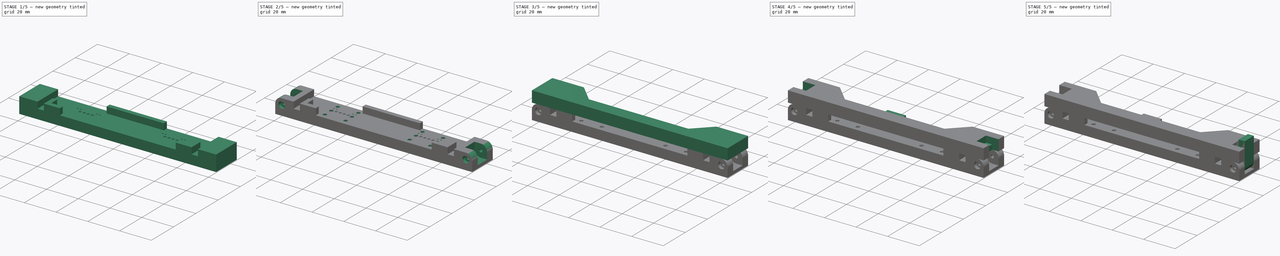
[diagram: build sequence overview — one tinted view per stage of 5, left to right]
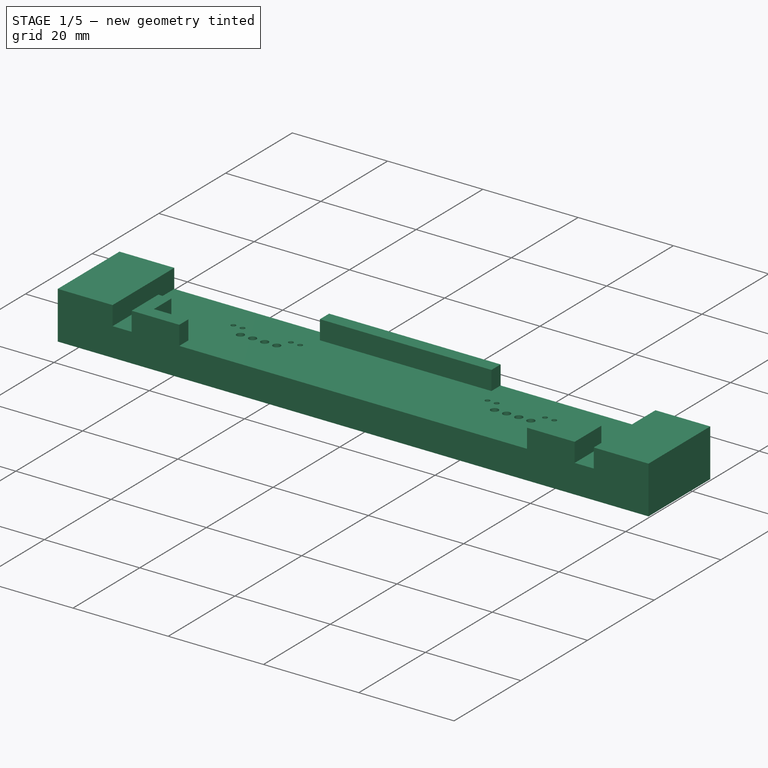
[diagram: stage 1 of 5 — iso view after this stage's code; geometry added in this stage tinted green]
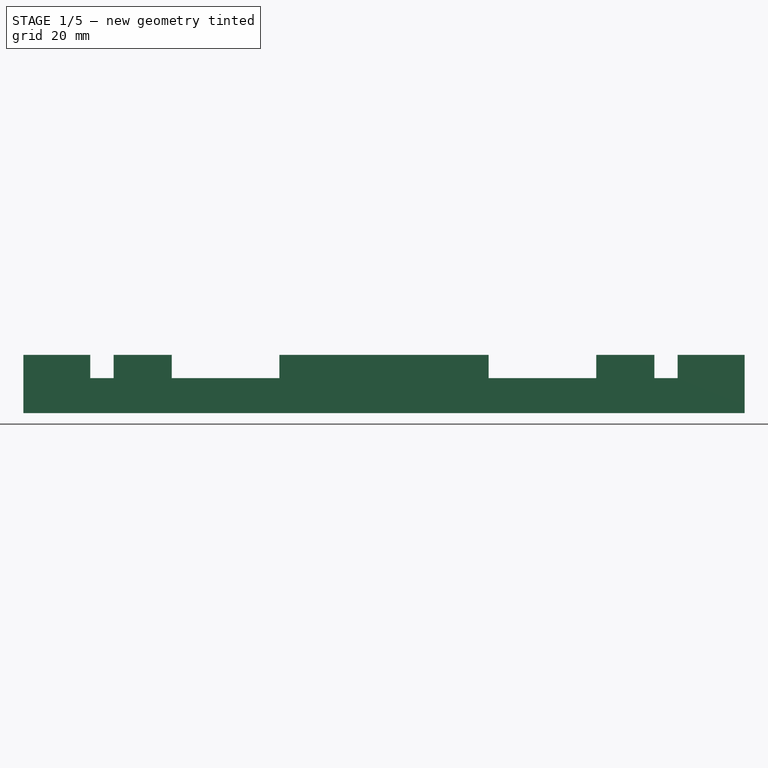
[diagram: stage 1 of 5 — front view after this stage's code; geometry added in this stage tinted green]
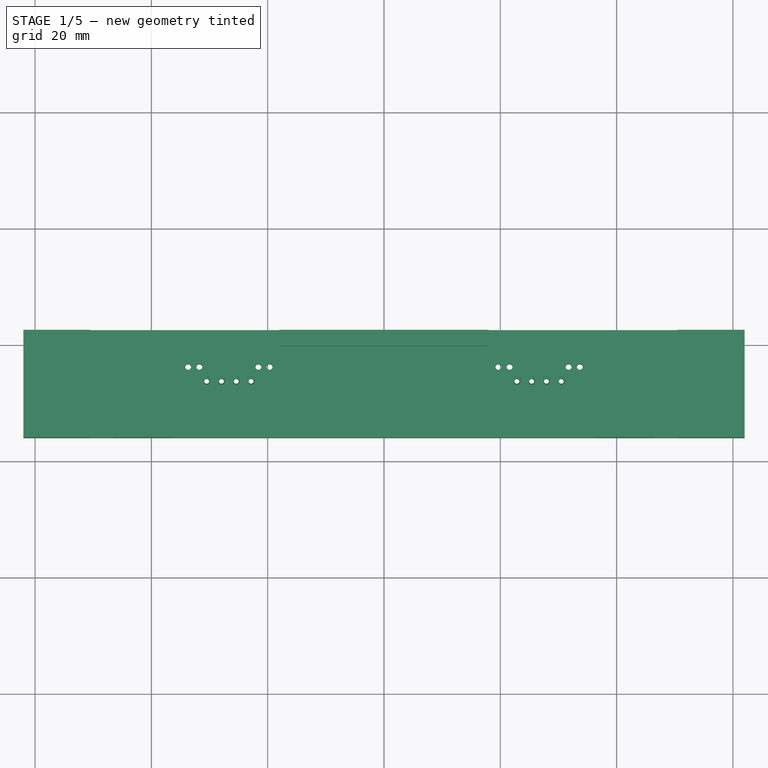
[diagram: stage 1 of 5 — top view after this stage's code; geometry added in this stage tinted green]
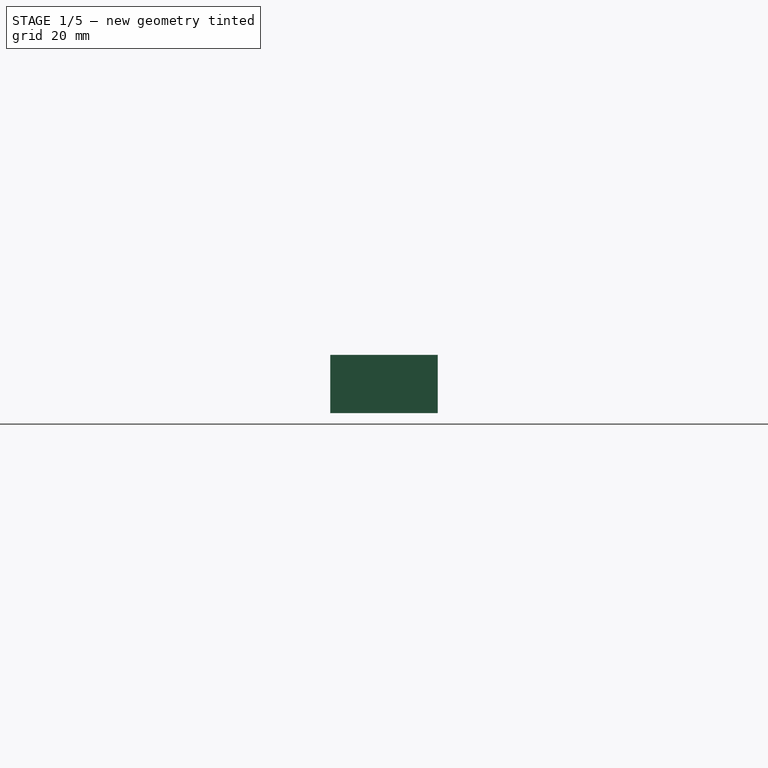
[diagram: stage 1 of 5 — right view after this stage's code; geometry added in this stage tinted green]
FCSTD DOCUMENT  (FreeCAD 0.18R15969 (Git))
Label: interface_FFC_soldering_rig_7
License: All rights reserved
LicenseURL: http://en.wikipedia.org/wiki/All_rights_reserved
objects: Part::Feature×123, App::Part×71, Sketcher::SketchObject×18, PartDesign::Pad×8, PartDesign::Pocket×8, PartDesign::Chamfer×6, PartDesign::Body×3, PartDesign::Hole×2, PartDesign::Fillet×1
note: 187 computed .brp shape members not serialized (recipe doc carries the construction recipe); baked Part::Feature solids carry a one-line shape summary decoded from their .brp

FEATURE [Part::Feature] Part__Feature  label="Layer_1"
  shape: bbox 86 x 12.5 x 1 mm, 366 faces (baked)
FEATURE [Part::Feature] Part__Feature001  label="Body_1"
  Placement = pos=(0,0,0) rot=(0,1,0;1.5708rad)
  shape: bbox 1.5 x 1.5 x 3.2 mm, 15 faces (baked)
FEATURE [App::Part] Open_CASCADE_STEP_translator_6_8_1_2_1  label="Open CASCADE STEP translator 6.8 1.2.1"
  Group = -> [Part__Feature001]
  Origin = -> Origin
FEATURE [App::Part] J24
  Group = -> [Open_CASCADE_STEP_translator_6_8_1_2_1]
  Origin = -> Origin001
  Placement = pos=(-22.86,-6.25,-0.5) rot=(0,1,0;3.14159rad)
FEATURE [Part::Feature] Part__Feature002  label="Body_002"
  Placement = pos=(0,0,0) rot=(0,1,0;1.5708rad)
  shape: bbox 1.5 x 1.5 x 3.2 mm, 15 faces (baked)
FEATURE [App::Part] Open_CASCADE_STEP_translator_6_8_1_3_1  label="Open CASCADE STEP translator 6.8 1.3.1"
  Group = -> [Part__Feature002]
  Origin = -> Origin002
FEATURE [App::Part] J25
  Group = -> [Open_CASCADE_STEP_translator_6_8_1_3_1]
  Origin = -> Origin003
  Placement = pos=(-25.4,-6.25,-0.5) rot=(0,1,0;3.14159rad)
FEATURE [Part::Feature] Part__Feature003  label="Body_003"
  Placement = pos=(0,0,0) rot=(0,1,0;1.5708rad)
  shape: bbox 1.5 x 1.5 x 3.2 mm, 15 faces (baked)
FEATURE [App::Part] Open_CASCADE_STEP_translator_6_8_1_4_1  label="Open CASCADE STEP translator 6.8 1.4.1"
  Group = -> [Part__Feature003]
  Origin = -> Origin004
FEATURE [App::Part] J26
  Group = -> [Open_CASCADE_STEP_translator_6_8_1_4_1]
  Origin = -> Origin005
  Placement = pos=(-27.94,-6.25,-0.5) rot=(0,1,0;3.14159rad)
FEATURE [Part::Feature] Part__Feature004  label="Body_004"
  Placement = pos=(0,0,0) rot=(0,1,0;1.5708rad)
  shape: bbox 1.5 x 1.5 x 3.2 mm, 15 faces (baked)
FEATURE [App::Part] Open_CASCADE_STEP_translator_6_8_1_5_1  label="Open CASCADE STEP translator 6.8 1.5.1"
  Group = -> [Part__Feature004]
  Origin = -> Origin006
FEATURE [App::Part] J27
  Group = -> [Open_CASCADE_STEP_translator_6_8_1_5_1]
  Origin = -> Origin007
  Placement = pos=(-30.48,-6.25,-0.5) rot=(0,1,0;3.14159rad)
FEATURE [Part::Feature] Part__Feature005  label="Body_005"
  Placement = pos=(0,0,0) rot=(0,1,0;1.5708rad)
  shape: bbox 1.5 x 1.5 x 3.2 mm, 15 faces (baked)
FEATURE [App::Part] Open_CASCADE_STEP_translator_6_8_1_6_1  label="Open CASCADE STEP translator 6.8 1.6.1"
  Group = -> [Part__Feature005]
  Origin = -> Origin008
FEATURE [App::Part] J20
  Group = -> [Open_CASCADE_STEP_translator_6_8_1_6_1]
  Origin = -> Origin009
  Placement = pos=(30.48,-6.25,-0.5) rot=(0,1,0;3.14159rad)
FEATURE [Part::Feature] Part__Feature006  label="Body_006"
  Placement = pos=(0,0,0) rot=(0,1,0;1.5708rad)
  shape: bbox 1.5 x 1.5 x 3.2 mm, 15 faces (baked)
FEATURE [App::Part] Open_CASCADE_STEP_translator_6_8_1_7_1  label="Open CASCADE STEP translator 6.8 1.7.1"
  Group = -> [Part__Feature006]
  Origin = -> Origin010
FEATURE [App::Part] J23
  Group = -> [Open_CASCADE_STEP_translator_6_8_1_7_1]
  Origin = -> Origin011
  Placement = pos=(22.86,-6.25,-0.5) rot=(0,1,0;3.14159rad)
FEATURE [Part::Feature] Part__Feature007  label="Body_007"
  Placement = pos=(0,0,0) rot=(0,1,0;1.5708rad)
  shape: bbox 1.5 x 1.5 x 3.2 mm, 15 faces (baked)
FEATURE [App::Part] Open_CASCADE_STEP_translator_6_8_1_8_1  label="Open CASCADE STEP translator 6.8 1.8.1"
  Group = -> [Part__Feature007]
  Origin = -> Origin012
FEATURE [App::Part] J21
  Group = -> [Open_CASCADE_STEP_translator_6_8_1_8_1]
  Origin = -> Origin013
  Placement = pos=(27.94,-6.25,-0.5) rot=(0,1,0;3.14159rad)
FEATURE [Part::Feature] Part__Feature008  label="Body_008"
  Placement = pos=(0,0,0) rot=(0,1,0;1.5708rad)
  shape: bbox 1.5 x 1.5 x 3.2 mm, 15 faces (baked)
FEATURE [App::Part] Open_CASCADE_STEP_translator_6_8_1_9_1  label="Open CASCADE STEP translator 6.8 1.9.1"
  Group = -> [Part__Feature008]
  Origin = -> Origin014
FEATURE [App::Part] J22
  Group = -> [Open_CASCADE_STEP_translator_6_8_1_9_1]
  Origin = -> Origin015
  Placement = pos=(25.4,-6.25,-0.5) rot=(0,1,0;3.14159rad)
FEATURE [Part::Feature] Part__Feature009  label="Body_009"
  Placement = pos=(0,-1.5,0) rot=(0.57735,-0.57735,-0.57735;4.18879rad)
  shape: bbox 12 x 7 x 4 mm, 99 faces (baked)
FEATURE [App::Part] Open_CASCADE_STEP_translator_6_8_1_10_1  label="Open CASCADE STEP translator 6.8 1.10.1"
  Group = -> [Part__Feature009]
  Origin = -> Origin016
FEATURE [App::Part] J1
  Group = -> [Open_CASCADE_STEP_translator_6_8_1_10_1]
  Origin = -> Origin017
  Placement = pos=(-26.67,-3.81,-0.5) rot=(0,1,0;3.14159rad)
FEATURE [Part::Feature] Part__Feature010  label="Body_010"
  Placement = pos=(0,-1.5,0) rot=(0.57735,-0.57735,-0.57735;4.18879rad)
  shape: bbox 12 x 7 x 4 mm, 99 faces (baked)
FEATURE [App::Part] Open_CASCADE_STEP_translator_6_8_1_11_1  label="Open CASCADE STEP translator 6.8 1.11.1"
  Group = -> [Part__Feature010]
  Origin = -> Origin018
FEATURE [App::Part] J2
  Group = -> [Open_CASCADE_STEP_translator_6_8_1_11_1]
  Origin = -> Origin019
  Placement = pos=(26.67,-3.81,-0.5) rot=(0,1,0;3.14159rad)
FEATURE [Part::Feature] Part__Feature011  label="Body_011"
  shape: bbox 1.91 x 1.2 x 0.4 mm, 6 faces (baked)
FEATURE [Part::Feature] Part__Feature012  label="Pin_1"
  Placement = pos=(-1.6,0,0) rot=(0,0,1;3.14159rad)
  shape: bbox 0.41 x 1.2 x 0.525 mm, 13 faces (baked)
FEATURE [Part::Feature] Part__Feature013  label="Pin_2"
  shape: bbox 0.41 x 1.2 x 0.525 mm, 13 faces (baked)
FEATURE [App::Part] Open_CASCADE_STEP_translator_6_8_1_12_1  label="Open CASCADE STEP translator 6.8 1.12.1"
  Group = -> [Part__Feature011,Part__Feature012,Part__Feature013]
  Origin = -> Origin020
FEATURE [App::Part] R3
  Group = -> [Open_CASCADE_STEP_translator_6_8_1_12_1]
  Origin = -> Origin021
  Placement = pos=(-30.1625,-11.43,0.5) rot=(0,0,-1;1.5708rad)
FEATURE [Part::Feature] Part__Feature014  label="Body_012"
  shape: bbox 1.2 x 2.4 x 0.75 mm, 6 faces (baked)
FEATURE [Part::Feature] Part__Feature015  label="Pin_003"
  shape: bbox 0.8 x 0.4 x 0.725 mm, 12 faces (baked)
FEATURE [Part::Feature] Part__Feature016  label="Pin_004"
  shape: bbox 0.8 x 0.4 x 0.725 mm, 12 faces (baked)
FEATURE [Part::Feature] Part__Feature017  label="Pin_3"
  shape: bbox 0.8 x 0.4 x 0.725 mm, 12 faces (baked)
FEATURE [Part::Feature] Part__Feature018  label="Pin_4"
  Placement = pos=(2.6,-1.9,0) rot=(0,0,1;3.14159rad)
  shape: bbox 0.8 x 0.4 x 0.725 mm, 12 faces (baked)
FEATURE [Part::Feature] Part__Feature019  label="Pin_5"
  Placement = pos=(2.6,0,0) rot=(0,0,1;3.14159rad)
  shape: bbox 0.8 x 0.4 x 0.725 mm, 12 faces (baked)
FEATURE [Part::Feature] Part__Feature020  label="Pin_6"
  Placement = pos=(2.6,1.9,0) rot=(0,0,1;3.14159rad)
  shape: bbox 0.8 x 0.4 x 0.725 mm, 12 faces (baked)
FEATURE [App::Part] Open_CASCADE_STEP_translator_6_8_1_13_1  label="Open CASCADE STEP translator 6.8 1.13.1"
  Group = -> [Part__Feature014,Part__Feature015,Part__Feature016,Part__Feature017,Part__Feature018,Part__Feature019,Part__Feature020]
  Origin = -> Origin022
FEATURE [App::Part] Q5
  Group = -> [Open_CASCADE_STEP_translator_6_8_1_13_1]
  Origin = -> Origin023
  Placement = pos=(-36.83,-11.43,0.5) rot=(0,0,1;0rad)
FEATURE [Part::Feature] Part__Feature021  label="Body_013"
  shape: bbox 1.2 x 2.4 x 0.75 mm, 6 faces (baked)
FEATURE [Part::Feature] Part__Feature022  label="Pin_005"
  shape: bbox 0.8 x 0.4 x 0.725 mm, 12 faces (baked)
FEATURE [Part::Feature] Part__Feature023  label="Pin_006"
  shape: bbox 0.8 x 0.4 x 0.725 mm, 12 faces (baked)
FEATURE [Part::Feature] Part__Feature024  label="Pin_007"
  shape: bbox 0.8 x 0.4 x 0.725 mm, 12 faces (baked)
FEATURE [Part::Feature] Part__Feature025  label="Pin_008"
  Placement = pos=(2.6,-1.9,0) rot=(0,0,1;3.14159rad)
  shape: bbox 0.8 x 0.4 x 0.725 mm, 12 faces (baked)
FEATURE [Part::Feature] Part__Feature026  label="Pin_009"
  Placement = pos=(2.6,0,0) rot=(0,0,1;3.14159rad)
  shape: bbox 0.8 x 0.4 x 0.725 mm, 12 faces (baked)
FEATURE [Part::Feature] Part__Feature027  label="Pin_010"
  Placement = pos=(2.6,1.9,0) rot=(0,0,1;3.14159rad)
  shape: bbox 0.8 x 0.4 x 0.725 mm, 12 faces (baked)
FEATURE [App::Part] Open_CASCADE_STEP_translator_6_8_1_13_1001  label="Open CASCADE STEP translator 6.8 1.13.002"
  Group = -> [Part__Feature021,Part__Feature022,Part__Feature023,Part__Feature024,Part__Feature025,Part__Feature026,Part__Feature027]
  Origin = -> Origin024
FEATURE [App::Part] Q6
  Group = -> [Open_CASCADE_STEP_translator_6_8_1_13_1001]
  Origin = -> Origin025
  Placement = pos=(-33.02,-11.43,0.5) rot=(0,0,1;0rad)
FEATURE [Part::Feature] Part__Feature028  label="Body_014"
  shape: bbox 1.2 x 2.4 x 0.75 mm, 6 faces (baked)
FEATURE [Part::Feature] Part__Feature029  label="Pin_011"
  shape: bbox 0.8 x 0.4 x 0.725 mm, 12 faces (baked)
FEATURE [Part::Feature] Part__Feature030  label="Pin_012"
  shape: bbox 0.8 x 0.4 x 0.725 mm, 12 faces (baked)
FEATURE [Part::Feature] Part__Feature031  label="Pin_013"
  shape: bbox 0.8 x 0.4 x 0.725 mm, 12 faces (baked)
FEATURE [Part::Feature] Part__Feature032  label="Pin_014"
  Placement = pos=(2.6,-1.9,0) rot=(0,0,1;3.14159rad)
  shape: bbox 0.8 x 0.4 x 0.725 mm, 12 faces (baked)
FEATURE [Part::Feature] Part__Feature033  label="Pin_015"
  Placement = pos=(2.6,0,0) rot=(0,0,1;3.14159rad)
  shape: bbox 0.8 x 0.4 x 0.725 mm, 12 faces (baked)
FEATURE [Part::Feature] Part__Feature034  label="Pin_016"
  Placement = pos=(2.6,1.9,0) rot=(0,0,1;3.14159rad)
  shape: bbox 0.8 x 0.4 x 0.725 mm, 12 faces (baked)
FEATURE [App::Part] Open_CASCADE_STEP_translator_6_8_1_13_1002  label="Open CASCADE STEP translator 6.8 1.13.003"
  Group = -> [Part__Feature028,Part__Feature029,Part__Feature030,Part__Feature031,Part__Feature032,Part__Feature033,Part__Feature034]
  Origin = -> Origin026
FEATURE [App::Part] U6
  Group = -> [Open_CASCADE_STEP_translator_6_8_1_13_1002]
  Origin = -> Origin027
  Placement = pos=(-25.4,-11.43,0.5) rot=(0,0,1;0rad)
FEATURE [Part::Feature] Part__Feature035  label="Body_015"
  shape: bbox 1.2 x 2.4 x 0.75 mm, 6 faces (baked)
FEATURE [Part::Feature] Part__Feature036  label="Pin_017"
  shape: bbox 0.8 x 0.4 x 0.725 mm, 12 faces (baked)
FEATURE [Part::Feature] Part__Feature037  label="Pin_018"
  shape: bbox 0.8 x 0.4 x 0.725 mm, 12 faces (baked)
FEATURE [Part::Feature] Part__Feature038  label="Pin_019"
  shape: bbox 0.8 x 0.4 x 0.725 mm, 12 faces (baked)
FEATURE [Part::Feature] Part__Feature039  label="Pin_020"
  Placement = pos=(2.6,-1.9,0) rot=(0,0,1;3.14159rad)
  shape: bbox 0.8 x 0.4 x 0.725 mm, 12 faces (baked)
FEATURE [Part::Feature] Part__Feature040  label="Pin_021"
  Placement = pos=(2.6,0,0) rot=(0,0,1;3.14159rad)
  shape: bbox 0.8 x 0.4 x 0.725 mm, 12 faces (baked)
FEATURE [Part::Feature] Part__Feature041  label="Pin_022"
  Placement = pos=(2.6,1.9,0) rot=(0,0,1;3.14159rad)
  shape: bbox 0.8 x 0.4 x 0.725 mm, 12 faces (baked)
FEATURE [App::Part] Open_CASCADE_STEP_translator_6_8_1_13_1003  label="Open CASCADE STEP translator 6.8 1.13.004"
  Group = -> [Part__Feature035,Part__Feature036,Part__Feature037,Part__Feature038,Part__Feature039,Part__Feature040,Part__Feature041]
  Origin = -> Origin028
FEATURE [App::Part] Q1
  Group = -> [Open_CASCADE_STEP_translator_6_8_1_13_1003]
  Origin = -> Origin029
  Placement = pos=(-21.59,-11.43,0.5) rot=(0,0,1;0rad)
FEATURE [Part::Feature] Part__Feature042  label="Body_016"
  shape: bbox 2.794 x 1.016 x 0.5842 mm, 6 faces (baked)
FEATURE [Part::Feature] Part__Feature043  label="Pin_023"
  Placement = pos=(-1.9558,-0.0762,0) rot=(0,0,1;1.5708rad)
  shape: bbox 0.381 x 0.5461 x 0.381 mm, 12 faces (baked)
FEATURE [Part::Feature] Part__Feature044  label="Pin_024"
  Placement = pos=(-0.0762,-1.9558,0) rot=(0,0,1;1.5708rad)
  shape: bbox 0.381 x 0.5461 x 0.381 mm, 12 faces (baked)
FEATURE [Part::Feature] Part__Feature045  label="Pin_025"
  Placement = pos=(-0.889,0.889,0) rot=(0,0,-1;1.5708rad)
  shape: bbox 0.381 x 0.4191 x 0.381 mm, 12 faces (baked)
FEATURE [App::Part] Open_CASCADE_STEP_translator_6_8_1_17_1  label="Open CASCADE STEP translator 6.8 1.17.1"
  Group = -> [Part__Feature042,Part__Feature043,Part__Feature044,Part__Feature045]
  Origin = -> Origin030
FEATURE [App::Part] U1
  Group = -> [Open_CASCADE_STEP_translator_6_8_1_17_1]
  Origin = -> Origin031
  Placement = pos=(-16.637,-11.303,0.5) rot=(0,0,1;1.5708rad)
FEATURE [Part::Feature] Part__Feature046  label="Body_017"
  shape: bbox 1.91 x 1.2 x 0.4 mm, 6 faces (baked)
FEATURE [Part::Feature] Part__Feature047  label="Pin_026"
  Placement = pos=(-1.6,0,0) rot=(0,0,1;3.14159rad)
  shape: bbox 0.41 x 1.2 x 0.525 mm, 13 faces (baked)
FEATURE [Part::Feature] Part__Feature048  label="Pin_027"
  shape: bbox 0.41 x 1.2 x 0.525 mm, 13 faces (baked)
FEATURE [App::Part] Open_CASCADE_STEP_translator_6_8_1_12_1001  label="Open CASCADE STEP translator 6.8 1.12.002"
  Group = -> [Part__Feature046,Part__Feature047,Part__Feature048]
  Origin = -> Origin032
FEATURE [App::Part] R12
  Group = -> [Open_CASCADE_STEP_translator_6_8_1_12_1001]
  Origin = -> Origin033
  Placement = pos=(-5.715,-11.43,0.5) rot=(0,0,1;1.5708rad)
FEATURE [Part::Feature] Part__Feature049  label="Body_018"
  shape: bbox 1.91 x 1.2 x 0.6 mm, 6 faces (baked)
FEATURE [Part::Feature] Part__Feature050  label="Pin_028"
  Placement = pos=(-1.6,0,0) rot=(0,0,1;3.14159rad)
  shape: bbox 0.41 x 1.2 x 0.725 mm, 13 faces (baked)
FEATURE [Part::Feature] Part__Feature051  label="Pin_029"
  shape: bbox 0.41 x 1.2 x 0.725 mm, 13 faces (baked)
FEATURE [App::Part] Open_CASCADE_STEP_translator_6_8_1_19_1  label="Open CASCADE STEP translator 6.8 1.19.1"
  Group = -> [Part__Feature049,Part__Feature050,Part__Feature051]
  Origin = -> Origin034
FEATURE [App::Part] C4
  Group = -> [Open_CASCADE_STEP_translator_6_8_1_19_1]
  Origin = -> Origin035
  Placement = pos=(-1.905,-11.43,0.5) rot=(0,0,-1;1.5708rad)
FEATURE [Part::Feature] Part__Feature052  label="Body_019"
  shape: bbox 1.91 x 1.2 x 0.4 mm, 6 faces (baked)
FEATURE [Part::Feature] Part__Feature053  label="Pin_030"
  Placement = pos=(-1.6,0,0) rot=(0,0,1;3.14159rad)
  shape: bbox 0.41 x 1.2 x 0.525 mm, 13 faces (baked)
FEATURE [Part::Feature] Part__Feature054  label="Pin_031"
  shape: bbox 0.41 x 1.2 x 0.525 mm, 13 faces (baked)
FEATURE [App::Part] Open_CASCADE_STEP_translator_6_8_1_12_1002  label="Open CASCADE STEP translator 6.8 1.12.003"
  Group = -> [Part__Feature052,Part__Feature053,Part__Feature054]
  Origin = -> Origin036
FEATURE [App::Part] R2
  Group = -> [Open_CASCADE_STEP_translator_6_8_1_12_1002]
  Origin = -> Origin037
  Placement = pos=(-3.81,-11.43,0.5) rot=(0,0,-1;1.5708rad)
FEATURE [Part::Feature] Part__Feature055  label="Body_020"
  shape: bbox 1.91 x 1.2 x 0.4 mm, 6 faces (baked)
FEATURE [Part::Feature] Part__Feature056  label="Pin_032"
  Placement = pos=(-1.6,0,0) rot=(0,0,1;3.14159rad)
  shape: bbox 0.41 x 1.2 x 0.525 mm, 13 faces (baked)
FEATURE [Part::Feature] Part__Feature057  label="Pin_033"
  shape: bbox 0.41 x 1.2 x 0.525 mm, 13 faces (baked)
FEATURE [App::Part] Open_CASCADE_STEP_translator_6_8_1_12_1003  label="Open CASCADE STEP translator 6.8 1.12.004"
  Group = -> [Part__Feature055,Part__Feature056,Part__Feature057]
  Origin = -> Origin038
FEATURE [App::Part] R9
  Group = -> [Open_CASCADE_STEP_translator_6_8_1_12_1003]
  Origin = -> Origin039
  Placement = pos=(0,-11.43,0.5) rot=(0,0,1;1.5708rad)
FEATURE [Part::Feature] Part__Feature058  label="Body_021"
  shape: bbox 1.91 x 1.2 x 0.4 mm, 6 faces (baked)
FEATURE [Part::Feature] Part__Feature059  label="Pin_034"
  Placement = pos=(-1.6,0,0) rot=(0,0,1;3.14159rad)
  shape: bbox 0.41 x 1.2 x 0.525 mm, 13 faces (baked)
FEATURE [Part::Feature] Part__Feature060  label="Pin_035"
  shape: bbox 0.41 x 1.2 x 0.525 mm, 13 faces (baked)
FEATURE [App::Part] Open_CASCADE_STEP_translator_6_8_1_12_1004  label="Open CASCADE STEP translator 6.8 1.12.005"
  Group = -> [Part__Feature058,Part__Feature059,Part__Feature060]
  Origin = -> Origin040
FEATURE [App::Part] R10
  Group = -> [Open_CASCADE_STEP_translator_6_8_1_12_1004]
  Origin = -> Origin041
  Placement = pos=(1.905,-11.43,0.5) rot=(0,0,-1;1.5708rad)
FEATURE [Part::Feature] Part__Feature061  label="Body_022"
  shape: bbox 1.91 x 1.2 x 0.6 mm, 6 faces (baked)
FEATURE [Part::Feature] Part__Feature062  label="Pin_036"
  Placement = pos=(-1.6,0,0) rot=(0,0,1;3.14159rad)
  shape: bbox 0.41 x 1.2 x 0.725 mm, 13 faces (baked)
FEATURE [Part::Feature] Part__Feature063  label="Pin_037"
  shape: bbox 0.41 x 1.2 x 0.725 mm, 13 faces (baked)
FEATURE [App::Part] Open_CASCADE_STEP_translator_6_8_1_19_1001  label="Open CASCADE STEP translator 6.8 1.19.002"
  Group = -> [Part__Feature061,Part__Feature062,Part__Feature063]
  Origin = -> Origin042
FEATURE [App::Part] C1
  Group = -> [Open_CASCADE_STEP_translator_6_8_1_19_1001]
  Origin = -> Origin043
  Placement = pos=(3.81,-11.43,0.5) rot=(0,0,-1;1.5708rad)
FEATURE [Part::Feature] Part__Feature064  label="Body_023"
  shape: bbox 1.91 x 1.2 x 0.4 mm, 6 faces (baked)
FEATURE [Part::Feature] Part__Feature065  label="Pin_038"
  Placement = pos=(-1.6,0,0) rot=(0,0,1;3.14159rad)
  shape: bbox 0.41 x 1.2 x 0.525 mm, 13 faces (baked)
FEATURE [Part::Feature] Part__Feature066  label="Pin_039"
  shape: bbox 0.41 x 1.2 x 0.525 mm, 13 faces (baked)
FEATURE [App::Part] Open_CASCADE_STEP_translator_6_8_1_12_1005  label="Open CASCADE STEP translator 6.8 1.12.006"
  Group = -> [Part__Feature064,Part__Feature065,Part__Feature066]
  Origin = -> Origin044
FEATURE [App::Part] R6
  Group = -> [Open_CASCADE_STEP_translator_6_8_1_12_1005]
  Origin = -> Origin045
  Placement = pos=(-28.2575,-11.43,0.5) rot=(0,0,1;1.5708rad)
FEATURE [Part::Feature] Part__Feature067  label="Body_024"
  shape: bbox 2.54 x 1.143 x 0.5842 mm, 6 faces (baked)
FEATURE [Part::Feature] Part__Feature068  label="Pin_040"
  Placement = pos=(-1.8796,-1.8796,0) rot=(0,0,-1;1.5708rad)
  shape: bbox 0.508 x 0.4318 x 0.381 mm, 10 faces (baked)
FEATURE [Part::Feature] Part__Feature069  label="Pin_041"
  Placement = pos=(0,0,0) rot=(0,0,-1;1.5708rad)
  shape: bbox 0.508 x 0.4318 x 0.381 mm, 10 faces (baked)
FEATURE [Part::Feature] Part__Feature070  label="Pin_042"
  Placement = pos=(-2.8448,-0.9652,0) rot=(0,0,1;1.5708rad)
  shape: bbox 0.508 x 0.4064 x 0.381 mm, 10 faces (baked)
FEATURE [App::Part] Open_CASCADE_STEP_translator_6_8_1_25_1  label="Open CASCADE STEP translator 6.8 1.25.1"
  Group = -> [Part__Feature067,Part__Feature068,Part__Feature069,Part__Feature070]
  Origin = -> Origin046
FEATURE [App::Part] D1
  Group = -> [Open_CASCADE_STEP_translator_6_8_1_25_1]
  Origin = -> Origin047
  Placement = pos=(-11.176,-10.3632,0.5) rot=(0,0,1;1.5708rad)
FEATURE [Part::Feature] Part__Feature071  label="Body_025"
  shape: bbox 1.91 x 1.2 x 0.6 mm, 6 faces (baked)
FEATURE [Part::Feature] Part__Feature072  label="Pin_043"
  Placement = pos=(-1.6,0,0) rot=(0,0,1;3.14159rad)
  shape: bbox 0.41 x 1.2 x 0.725 mm, 13 faces (baked)
FEATURE [Part::Feature] Part__Feature073  label="Pin_044"
  shape: bbox 0.41 x 1.2 x 0.725 mm, 13 faces (baked)
FEATURE [App::Part] Open_CASCADE_STEP_translator_6_8_1_19_1002  label="Open CASCADE STEP translator 6.8 1.19.003"
  Group = -> [Part__Feature071,Part__Feature072,Part__Feature073]
  Origin = -> Origin048
FEATURE [App::Part] C2
  Group = -> [Open_CASCADE_STEP_translator_6_8_1_19_1002]
  Origin = -> Origin049
  Placement = pos=(-7.62,-11.43,0.5) rot=(0,0,1;1.5708rad)
FEATURE [Part::Feature] Part__Feature074  label="Body_026"
  shape: bbox 1.2 x 2.4 x 0.75 mm, 6 faces (baked)
FEATURE [Part::Feature] Part__Feature075  label="Pin_045"
  shape: bbox 0.8 x 0.4 x 0.725 mm, 12 faces (baked)
FEATURE [Part::Feature] Part__Feature076  label="Pin_046"
  shape: bbox 0.8 x 0.4 x 0.725 mm, 12 faces (baked)
FEATURE [Part::Feature] Part__Feature077  label="Pin_047"
  shape: bbox 0.8 x 0.4 x 0.725 mm, 12 faces (baked)
FEATURE [Part::Feature] Part__Feature078  label="Pin_048"
  Placement = pos=(2.6,-1.9,0) rot=(0,0,1;3.14159rad)
  shape: bbox 0.8 x 0.4 x 0.725 mm, 12 faces (baked)
FEATURE [Part::Feature] Part__Feature079  label="Pin_049"
  Placement = pos=(2.6,0,0) rot=(0,0,1;3.14159rad)
  shape: bbox 0.8 x 0.4 x 0.725 mm, 12 faces (baked)
FEATURE [Part::Feature] Part__Feature080  label="Pin_050"
  Placement = pos=(2.6,1.9,0) rot=(0,0,1;3.14159rad)
  shape: bbox 0.8 x 0.4 x 0.725 mm, 12 faces (baked)
FEATURE [App::Part] Open_CASCADE_STEP_translator_6_8_1_13_1004  label="Open CASCADE STEP translator 6.8 1.13.005"
  Group = -> [Part__Feature074,Part__Feature075,Part__Feature076,Part__Feature077,Part__Feature078,Part__Feature079,Part__Feature080]
  Origin = -> Origin050
FEATURE [App::Part] Q3
  Group = -> [Open_CASCADE_STEP_translator_6_8_1_13_1004]
  Origin = -> Origin051
  Placement = pos=(21.59,-11.43,0.5) rot=(0,0,1;0rad)
FEATURE [Part::Feature] Part__Feature081  label="Body_027"
  shape: bbox 1.2 x 2.4 x 0.75 mm, 6 faces (baked)
FEATURE [Part::Feature] Part__Feature082  label="Pin_051"
  shape: bbox 0.8 x 0.4 x 0.725 mm, 12 faces (baked)
FEATURE [Part::Feature] Part__Feature083  label="Pin_052"
  shape: bbox 0.8 x 0.4 x 0.725 mm, 12 faces (baked)
FEATURE [Part::Feature] Part__Feature084  label="Pin_053"
  shape: bbox 0.8 x 0.4 x 0.725 mm, 12 faces (baked)
FEATURE [Part::Feature] Part__Feature085  label="Pin_054"
  Placement = pos=(2.6,-1.9,0) rot=(0,0,1;3.14159rad)
  shape: bbox 0.8 x 0.4 x 0.725 mm, 12 faces (baked)
FEATURE [Part::Feature] Part__Feature086  label="Pin_055"
  Placement = pos=(2.6,0,0) rot=(0,0,1;3.14159rad)
  shape: bbox 0.8 x 0.4 x 0.725 mm, 12 faces (baked)
FEATURE [Part::Feature] Part__Feature087  label="Pin_056"
  Placement = pos=(2.6,1.9,0) rot=(0,0,1;3.14159rad)
  shape: bbox 0.8 x 0.4 x 0.725 mm, 12 faces (baked)
FEATURE [App::Part] Open_CASCADE_STEP_translator_6_8_1_13_1005  label="Open CASCADE STEP translator 6.8 1.13.006"
  Group = -> [Part__Feature081,Part__Feature082,Part__Feature083,Part__Feature084,Part__Feature085,Part__Feature086,Part__Feature087]
  Origin = -> Origin052
FEATURE [App::Part] U2
  Group = -> [Open_CASCADE_STEP_translator_6_8_1_13_1005]
  Origin = -> Origin053
  Placement = pos=(25.4,-11.43,0.5) rot=(0,0,1;0rad)
FEATURE [Part::Feature] Part__Feature088  label="Body_028"
  shape: bbox 1.91 x 1.2 x 0.4 mm, 6 faces (baked)
FEATURE [Part::Feature] Part__Feature089  label="Pin_057"
  Placement = pos=(-1.6,0,0) rot=(0,0,1;3.14159rad)
  shape: bbox 0.41 x 1.2 x 0.525 mm, 13 faces (baked)
FEATURE [Part::Feature] Part__Feature090  label="Pin_058"
  shape: bbox 0.41 x 1.2 x 0.525 mm, 13 faces (baked)
FEATURE [App::Part] Open_CASCADE_STEP_translator_6_8_1_12_1006  label="Open CASCADE STEP translator 6.8 1.12.007"
  Group = -> [Part__Feature088,Part__Feature089,Part__Feature090]
  Origin = -> Origin054
FEATURE [App::Part] R11
  Group = -> [Open_CASCADE_STEP_translator_6_8_1_12_1006]
  Origin = -> Origin055
  Placement = pos=(30.1625,-11.43,0.5) rot=(0,0,-1;1.5708rad)
FEATURE [Part::Feature] Part__Feature091  label="Body_029"
  shape: bbox 1.91 x 1.2 x 0.4 mm, 6 faces (baked)
FEATURE [Part::Feature] Part__Feature092  label="Pin_059"
  Placement = pos=(-1.6,0,0) rot=(0,0,1;3.14159rad)
  shape: bbox 0.41 x 1.2 x 0.525 mm, 13 faces (baked)
FEATURE [Part::Feature] Part__Feature093  label="Pin_060"
  shape: bbox 0.41 x 1.2 x 0.525 mm, 13 faces (baked)
FEATURE [App::Part] Open_CASCADE_STEP_translator_6_8_1_12_1007  label="Open CASCADE STEP translator 6.8 1.12.008"
  Group = -> [Part__Feature091,Part__Feature092,Part__Feature093]
  Origin = -> Origin056
FEATURE [App::Part] R13
  Group = -> [Open_CASCADE_STEP_translator_6_8_1_12_1007]
  Origin = -> Origin057
  Placement = pos=(28.2575,-11.43,0.5) rot=(0,0,1;1.5708rad)
FEATURE [Part::Feature] Part__Feature094  label="Body_030"
  shape: bbox 1.2 x 2.4 x 0.75 mm, 6 faces (baked)
FEATURE [Part::Feature] Part__Feature095  label="Pin_061"
  shape: bbox 0.8 x 0.4 x 0.725 mm, 12 faces (baked)
FEATURE [Part::Feature] Part__Feature096  label="Pin_062"
  shape: bbox 0.8 x 0.4 x 0.725 mm, 12 faces (baked)
FEATURE [Part::Feature] Part__Feature097  label="Pin_063"
  shape: bbox 0.8 x 0.4 x 0.725 mm, 12 faces (baked)
FEATURE [Part::Feature] Part__Feature098  label="Pin_064"
  Placement = pos=(2.6,-1.9,0) rot=(0,0,1;3.14159rad)
  shape: bbox 0.8 x 0.4 x 0.725 mm, 12 faces (baked)
FEATURE [Part::Feature] Part__Feature099  label="Pin_065"
  Placement = pos=(2.6,0,0) rot=(0,0,1;3.14159rad)
  shape: bbox 0.8 x 0.4 x 0.725 mm, 12 faces (baked)
FEATURE [Part::Feature] Part__Feature100  label="Pin_066"
  Placement = pos=(2.6,1.9,0) rot=(0,0,1;3.14159rad)
  shape: bbox 0.8 x 0.4 x 0.725 mm, 12 faces (baked)
FEATURE [App::Part] Open_CASCADE_STEP_translator_6_8_1_13_1006  label="Open CASCADE STEP translator 6.8 1.13.007"
  Group = -> [Part__Feature094,Part__Feature095,Part__Feature096,Part__Feature097,Part__Feature098,Part__Feature099,Part__Feature100]
  Origin = -> Origin058
FEATURE [App::Part] Q7
  Group = -> [Open_CASCADE_STEP_translator_6_8_1_13_1006]
  Origin = -> Origin059
  Placement = pos=(33.02,-11.43,0.5) rot=(0,0,1;0rad)
FEATURE [Part::Feature] Part__Feature101  label="Body_031"
  shape: bbox 1.2 x 2.4 x 0.75 mm, 6 faces (baked)
FEATURE [Part::Feature] Part__Feature102  label="Pin_067"
  shape: bbox 0.8 x 0.4 x 0.725 mm, 12 faces (baked)
FEATURE [Part::Feature] Part__Feature103  label="Pin_068"
  shape: bbox 0.8 x 0.4 x 0.725 mm, 12 faces (baked)
FEATURE [Part::Feature] Part__Feature104  label="Pin_069"
  shape: bbox 0.8 x 0.4 x 0.725 mm, 12 faces (baked)
FEATURE [Part::Feature] Part__Feature105  label="Pin_070"
  Placement = pos=(2.6,-1.9,0) rot=(0,0,1;3.14159rad)
  shape: bbox 0.8 x 0.4 x 0.725 mm, 12 faces (baked)
FEATURE [Part::Feature] Part__Feature106  label="Pin_071"
  Placement = pos=(2.6,0,0) rot=(0,0,1;3.14159rad)
  shape: bbox 0.8 x 0.4 x 0.725 mm, 12 faces (baked)
FEATURE [Part::Feature] Part__Feature107  label="Pin_072"
  Placement = pos=(2.6,1.9,0) rot=(0,0,1;3.14159rad)
  shape: bbox 0.8 x 0.4 x 0.725 mm, 12 faces (baked)
FEATURE [App::Part] Open_CASCADE_STEP_translator_6_8_1_13_1007  label="Open CASCADE STEP translator 6.8 1.13.008"
  Group = -> [Part__Feature101,Part__Feature102,Part__Feature103,Part__Feature104,Part__Feature105,Part__Feature106,Part__Feature107]
  Origin = -> Origin060
FEATURE [App::Part] Q8
  Group = -> [Open_CASCADE_STEP_translator_6_8_1_13_1007]
  Origin = -> Origin061
  Placement = pos=(36.83,-11.43,0.5) rot=(0,0,1;0rad)
FEATURE [Part::Feature] Part__Feature108  label="Body_032"
  shape: bbox 1.91 x 1.2 x 0.4 mm, 6 faces (baked)
FEATURE [Part::Feature] Part__Feature109  label="Pin_073"
  Placement = pos=(-1.6,0,0) rot=(0,0,1;3.14159rad)
  shape: bbox 0.41 x 1.2 x 0.525 mm, 13 faces (baked)
FEATURE [Part::Feature] Part__Feature110  label="Pin_074"
  shape: bbox 0.41 x 1.2 x 0.525 mm, 13 faces (baked)
FEATURE [App::Part] Open_CASCADE_STEP_translator_6_8_1_12_1008  label="Open CASCADE STEP translator 6.8 1.12.009"
  Group = -> [Part__Feature108,Part__Feature109,Part__Feature110]
  Origin = -> Origin062
FEATURE [App::Part] R1
  Group = -> [Open_CASCADE_STEP_translator_6_8_1_12_1008]
  Origin = -> Origin063
  Placement = pos=(10.16,-11.43,0.5) rot=(0,0,-1;1.5708rad)
FEATURE [Part::Feature] Part__Feature111  label="Body_033"
  shape: bbox 1.91 x 1.2 x 0.6 mm, 6 faces (baked)
FEATURE [Part::Feature] Part__Feature112  label="Pin_075"
  Placement = pos=(-1.6,0,0) rot=(0,0,1;3.14159rad)
  shape: bbox 0.41 x 1.2 x 0.725 mm, 13 faces (baked)
FEATURE [Part::Feature] Part__Feature113  label="Pin_076"
  shape: bbox 0.41 x 1.2 x 0.725 mm, 13 faces (baked)
FEATURE [App::Part] Open_CASCADE_STEP_translator_6_8_1_19_1003  label="Open CASCADE STEP translator 6.8 1.19.004"
  Group = -> [Part__Feature111,Part__Feature112,Part__Feature113]
  Origin = -> Origin064
FEATURE [App::Part] C3
  Group = -> [Open_CASCADE_STEP_translator_6_8_1_19_1003]
  Origin = -> Origin065
  Placement = pos=(-41.91,-11.43,0.5) rot=(0,0,-1;1.5708rad)
FEATURE [Part::Feature] Part__Feature114  label="Body_034"
  shape: bbox 1.91 x 1.2 x 0.6 mm, 6 faces (baked)
FEATURE [Part::Feature] Part__Feature115  label="Pin_077"
  Placement = pos=(-1.6,0,0) rot=(0,0,1;3.14159rad)
  shape: bbox 0.41 x 1.2 x 0.725 mm, 13 faces (baked)
FEATURE [Part::Feature] Part__Feature116  label="Pin_078"
  shape: bbox 0.41 x 1.2 x 0.725 mm, 13 faces (baked)
FEATURE [App::Part] Open_CASCADE_STEP_translator_6_8_1_19_1004  label="Open CASCADE STEP translator 6.8 1.19.005"
  Group = -> [Part__Feature114,Part__Feature115,Part__Feature116]
  Origin = -> Origin066
FEATURE [App::Part] C5
  Group = -> [Open_CASCADE_STEP_translator_6_8_1_19_1004]
  Origin = -> Origin067
  Placement = pos=(41.91,-11.43,0.5) rot=(0,0,-1;1.5708rad)
FEATURE [Part::Feature] Part__Feature117  label="Body_035"
  shape: bbox 3 x 1.5 x 0.7112 mm, 6 faces (baked)
FEATURE [Part::Feature] Part__Feature118  label="Pin_079"
  Placement = pos=(-0.35,2.25,0) rot=(0,0,-1;1.5708rad)
  shape: bbox 0.254 x 0.6135 x 0.4699 mm, 12 faces (baked)
FEATURE [Part::Feature] Part__Feature119  label="Pin_080"
  Placement = pos=(-1.3,1.3,0) rot=(0,0,-1;1.5708rad)
  shape: bbox 0.254 x 0.6135 x 0.4699 mm, 12 faces (baked)
FEATURE [Part::Feature] Part__Feature120  label="Pin_081"
  Placement = pos=(-2.25,0.35,0) rot=(0,0,-1;1.5708rad)
  shape: bbox 0.254 x 0.6135 x 0.4699 mm, 12 faces (baked)
FEATURE [Part::Feature] Part__Feature121  label="Pin_082"
  Placement = pos=(-2.25,-0.35,0) rot=(0,0,1;1.5708rad)
  shape: bbox 0.254 x 0.6135 x 0.4699 mm, 12 faces (baked)
FEATURE [Part::Feature] Part__Feature122  label="Pin_083"
  Placement = pos=(-0.35,-2.25,0) rot=(0,0,1;1.5708rad)
  shape: bbox 0.254 x 0.6135 x 0.4699 mm, 12 faces (baked)
FEATURE [App::Part] Open_CASCADE_STEP_translator_6_8_1_36_1  label="Open CASCADE STEP translator 6.8 1.36.1"
  Group = -> [Part__Feature117,Part__Feature118,Part__Feature119,Part__Feature120,Part__Feature121,Part__Feature122]
  Origin = -> Origin068
FEATURE [App::Part] U3
  Group = -> [Open_CASCADE_STEP_translator_6_8_1_36_1]
  Origin = -> Origin069
  Placement = pos=(6.985,-11.43,0.5) rot=(0,0,1;1.5708rad)
FEATURE [App::Part] Open_CASCADE_STEP_translator_6_8_1  label="Open CASCADE STEP translator 6.8 1"
  Group = -> [Part__Feature,J24,J25,J26,J27,J20,J23,J21,J22,J1,J2,R3,Q5,Q6,U6,Q1,U1,R12,C4,R2,R9,R10,C1,R6,D1,C2,Q3,U2,R11,R13,Q7,Q8,R1,C3,C5,U3]
  Origin = -> Origin070
  Placement = pos=(0,0,0.5) rot=(0,0,1;0rad)
FEATURE [Sketcher::SketchObject] Sketch
  MapMode = 5
  Placement = pos=(0,0,0) rot=(0,1,0;3.14159rad)
  Support = -> [XY_Plane071]
  sketch-geometry (24):
    g0: Circle CenterX=-33.67 CenterY=-3.81 CenterZ=0 NormalX=0 NormalY=0 NormalZ=1 AngleXU=0 Radius=0.5
    g1: Circle CenterX=-31.745 CenterY=-3.81 CenterZ=0 NormalX=0 NormalY=0 NormalZ=1 AngleXU=0 Radius=0.5
    g2: Circle CenterX=-21.595 CenterY=-3.81 CenterZ=0 NormalX=0 NormalY=0 NormalZ=1 AngleXU=0 Radius=0.5
    g3: Circle CenterX=-19.67 CenterY=-3.81 CenterZ=0 NormalX=0 NormalY=0 NormalZ=1 AngleXU=0 Radius=0.5
    g4: Circle CenterX=19.67 CenterY=-3.81 CenterZ=0 NormalX=0 NormalY=0 NormalZ=1 AngleXU=0 Radius=0.5
    g5: Circle CenterX=21.595 CenterY=-3.81 CenterZ=0 NormalX=0 NormalY=0 NormalZ=1 AngleXU=0 Radius=0.5
    g6: Circle CenterX=31.745 CenterY=-3.81 CenterZ=0 NormalX=0 NormalY=0 NormalZ=1 AngleXU=0 Radius=0.5
    g7: Circle CenterX=33.67 CenterY=-3.81 CenterZ=0 NormalX=0 NormalY=0 NormalZ=1 AngleXU=0 Radius=0.5
    g8: LineSegment [constr] StartX=-19.67 StartY=-3.81 StartZ=0 EndX=0 EndY=-3.81 EndZ=0
    g9: LineSegment [constr] StartX=19.67 StartY=-3.81 StartZ=0 EndX=0 EndY=-3.81 EndZ=0
    g10: LineSegment [constr] StartX=19.67 StartY=-3.81 StartZ=0 EndX=21.595 EndY=-3.81 EndZ=0
    g11: LineSegment [constr] StartX=-21.595 StartY=-3.81 StartZ=0 EndX=-19.67 EndY=-3.81 EndZ=0
    g12: LineSegment [constr] StartX=-21.595 StartY=-3.81 StartZ=0 EndX=-31.745 EndY=-3.81 EndZ=0
    g13: LineSegment [constr] StartX=21.595 StartY=-3.81 StartZ=0 EndX=31.745 EndY=-3.81 EndZ=0
    g14: LineSegment [constr] StartX=31.745 StartY=-3.81 StartZ=0 EndX=33.67 EndY=-3.81 EndZ=0
    g15: LineSegment [constr] StartX=-33.67 StartY=-3.81 StartZ=0 EndX=-31.745 EndY=-3.81 EndZ=0
    g16: LineSegment [constr] StartX=-31.745 StartY=-3.81 StartZ=0 EndX=-26.67 EndY=0 EndZ=0
    g17: LineSegment [constr] StartX=-26.67 StartY=0 StartZ=0 EndX=-21.595 EndY=-3.81 EndZ=0
    g18: LineSegment StartX=62 StartY=2.5 StartZ=0 EndX=-62 EndY=2.5 EndZ=0
    g19: LineSegment StartX=-62 StartY=2.5 StartZ=0 EndX=-62 EndY=-16 EndZ=0
    g20: LineSegment StartX=-62 StartY=-16 StartZ=0 EndX=62 EndY=-16 EndZ=0
    g21: LineSegment StartX=62 StartY=-16 StartZ=0 EndX=62 EndY=2.5 EndZ=0
    g22: LineSegment [constr] StartX=-62 StartY=-16 StartZ=0 EndX=0 EndY=0 EndZ=0
    g23: LineSegment [constr] StartX=0 StartY=0 StartZ=0 EndX=62 EndY=-16 EndZ=0
  constraints (56):
    c: Coincident(g8,g3)
    c: PointOnObject(g8,g-2)
    c: Horizontal(g8)
    c: DistanceY(g8,g-1) = 3.81
    c: Coincident(g9,g4)
    c: Coincident(g9,g8)
    c: Horizontal(g9)
    c: Equal(g9,g8)
    c: Coincident(g10,g4)
    c: Coincident(g10,g5)
    c: Horizontal(g10)
    c: Coincident(g11,g2)
    c: Coincident(g11,g3)
    c: Horizontal(g11)
    c: Equal(g11,g10)
    c: Coincident(g12,g2)
    c: Coincident(g12,g1)
    c: Horizontal(g12)
    c: Coincident(g13,g5)
    c: Coincident(g13,g6)
    c: Horizontal(g13)
    c: Equal(g13,g12)
    c: Coincident(g14,g6)
    c: Coincident(g14,g7)
    c: Horizontal(g14)
    c: Coincident(g15,g0)
    c: Coincident(g15,g1)
    c: Horizontal(g15)
    c: Equal(g15,g14)
    c: DistanceX(g14,g14) = 1.925
    c: Equal(g14,g10)
    c: DistanceX(g13,g13) = 10.15
    c: Coincident(g16,g1)
    c: PointOnObject(g16,g-1)
    c: Coincident(g17,g16)
    c: Coincident(g17,g2)
    c: Equal(g17,g16)
    c: DistanceX(g16,g-1) = 26.67
    c: Radius(g0) = 0.5
    c: Equal(g0, g1-g7) x7
    c: Coincident(g18,g19)
    c: Coincident(g19,g20)
    c: Coincident(g20,g21)
    c: Coincident(g21,g18)
    c: Horizontal(g18)
    c: Horizontal(g20)
    c: Vertical(g19)
    c: Vertical(g21)
    c: Coincident(g22,g19)
    c: Coincident(g23,g20)
    c: Coincident(g23,g22)
    c: Coincident(g22,g-1)
    c: Equal(g22,g23)
    c: DistanceY(g-1,g18) = 2.5
    c: DistanceY(g19,g-1) = 16
    c: DistanceX(g18,g18) = 124
FEATURE [PartDesign::Pad] Pad
  Length = 6
  Length2 = 100
  Profile = -> Sketch
  Refine = true
  Type = 0
FEATURE [Sketcher::SketchObject] Sketch001
  MapMode = 5
  Support = -> [Pad]
  sketch-geometry (18):
    g0: Circle CenterX=-30.48 CenterY=-6.25 CenterZ=0 NormalX=0 NormalY=0 NormalZ=1 AngleXU=0 Radius=0.75
    g1: Circle CenterX=-27.94 CenterY=-6.25 CenterZ=0 NormalX=0 NormalY=0 NormalZ=1 AngleXU=0 Radius=0.75
    g2: LineSegment [constr] StartX=-30.48 StartY=-6.25 StartZ=0 EndX=-27.94 EndY=-6.25 EndZ=0
    g3: Circle CenterX=-25.4 CenterY=-6.25 CenterZ=0 NormalX=0 NormalY=0 NormalZ=1 AngleXU=0 Radius=0.75
    g4: LineSegment [constr] StartX=-27.94 StartY=-6.25 StartZ=0 EndX=-25.4 EndY=-6.25 EndZ=0
    g5: Circle CenterX=-22.86 CenterY=-6.25 CenterZ=0 NormalX=0 NormalY=0 NormalZ=1 AngleXU=0 Radius=0.75
    g6: LineSegment [constr] StartX=-25.4 StartY=-6.25 StartZ=0 EndX=-22.86 EndY=-6.25 EndZ=0
    g7: Circle CenterX=22.86 CenterY=-6.25 CenterZ=0 NormalX=0 NormalY=0 NormalZ=1 AngleXU=0 Radius=0.75
    g8: Circle CenterX=25.4 CenterY=-6.25 CenterZ=0 NormalX=0 NormalY=0 NormalZ=1 AngleXU=0 Radius=0.75
    g9: LineSegment [constr] StartX=22.86 StartY=-6.25 StartZ=0 EndX=25.4 EndY=-6.25 EndZ=0
    g10: Circle CenterX=27.94 CenterY=-6.25 CenterZ=0 NormalX=0 NormalY=0 NormalZ=1 AngleXU=0 Radius=0.75
    g11: LineSegment [constr] StartX=25.4 StartY=-6.25 StartZ=0 EndX=27.94 EndY=-6.25 EndZ=0
    g12: Circle CenterX=30.48 CenterY=-6.25 CenterZ=0 NormalX=0 NormalY=0 NormalZ=1 AngleXU=0 Radius=0.75
    g13: LineSegment [constr] StartX=27.94 StartY=-6.25 StartZ=0 EndX=30.48 EndY=-6.25 EndZ=0
    g14: LineSegment [constr] StartX=22.86 StartY=-6.25 StartZ=0 EndX=26.67 EndY=0 EndZ=0
    g15: LineSegment [constr] StartX=26.67 StartY=0 StartZ=0 EndX=30.48 EndY=-6.25 EndZ=0
    g16: LineSegment [constr] StartX=-30.48 StartY=-6.25 StartZ=0 EndX=-26.67 EndY=0 EndZ=0
    g17: LineSegment [constr] StartX=-26.67 StartY=0 StartZ=0 EndX=-22.86 EndY=-6.25 EndZ=0
  constraints (46):
    c: Coincident(g0,g2)
    c: Coincident(g1,g2)
    c: Distance(g2) = 2.54
    c: Angle(g2) = 0
    c: Coincident(g1,g4)
    c: Coincident(g3,g4)
    c: Equal(g2,g4)
    c: Parallel(g4,g2)
    c: Coincident(g3,g6)
    c: Coincident(g5,g6)
    c: Equal(g2,g6)
    c: Parallel(g6,g2)
    c: Radius(g0) = 0.75
    c: Equal(g0,g1)
    c: Equal(g1,g3)
    c: Equal(g3,g5)
    c: Coincident(g7,g9)
    c: Coincident(g8,g9)
    c: Equal(g2,g9) = 2.54
    c: Parallel(g2,g9)
    c: Coincident(g8,g11)
    c: Coincident(g10,g11)
    c: Equal(g9,g11)
    c: Parallel(g11,g9)
    c: Coincident(g10,g13)
    c: Coincident(g12,g13)
    c: Equal(g9,g13)
    c: Parallel(g13,g9)
    c: Equal(g0,g7) = 0.75
    c: Equal(g7,g8)
    c: Equal(g8,g10)
    c: Equal(g10,g12)
    c: Coincident(g14,g7)
    c: PointOnObject(g14,g-1)
    c: Coincident(g15,g14)
    c: Coincident(g15,g12)
    c: Equal(g15,g14)
    c: Coincident(g16,g0)
    c: PointOnObject(g16,g-1)
    c: Coincident(g17,g16)
    c: Coincident(g17,g5)
    c: Equal(g17,g16)
    c: Equal(g16,g14)
    c: DistanceX(g16,g-1) = 26.67
    c: DistanceX(g-1,g14) = 26.67
    c: DistanceY(g0,g-1) = 6.25
FEATURE [PartDesign::Hole] Hole
  BaseFeature = -> Pad
  Depth = 25
  DepthType = 0
  Diameter = 0.85
  DrillPoint = 0
  DrillPointAngle = 118
  HoleCutCountersinkAngle = 90
  HoleCutDepth = 1.8
  HoleCutDiameter = 1.575
  HoleCutType = 1
  ModelActualThread = false
  Profile = -> Sketch001
  Refine = true
  Tapered = false
  TaperedAngle = 90
  ThreadAngle = 0
  ThreadClass = 0
  ThreadCutOffInner = 0
  ThreadCutOffOuter = 0
  ThreadDirection = 0
  ThreadFit = 0
  ThreadPitch = 0
  ThreadSize = 0
  ThreadType = 0
  Threaded = false
FEATURE [PartDesign::Chamfer] Chamfer
  Base = -> Hole [Edge78,Edge80,Edge84,Edge82,Edge72,Edge70,Edge76,Edge74]
  BaseFeature = -> Hole
  Size = 0.2
FEATURE [Sketcher::SketchObject] Sketch002
  ExternalGeometry = -> [Chamfer]
  MapMode = 5
  Support = -> [Chamfer]
  sketch-geometry (26):
    g0: LineSegment StartX=-62 StartY=-16 StartZ=0 EndX=-62 EndY=2.5 EndZ=0
    g1: LineSegment StartX=-62 StartY=-16 StartZ=0 EndX=-50.5 EndY=-16 EndZ=0
    g2: LineSegment StartX=-50.5 StartY=-16 StartZ=0 EndX=-50.5 EndY=2.5 EndZ=0
    g3: LineSegment StartX=-50.5 StartY=2.5 StartZ=0 EndX=-62 EndY=2.5 EndZ=0
    g4: LineSegment StartX=62 StartY=2.5 StartZ=0 EndX=50.5 EndY=2.5 EndZ=0
    g5: LineSegment StartX=50.5 StartY=2.5 StartZ=0 EndX=50.5 EndY=-16 EndZ=0
    g6: LineSegment StartX=62 StartY=2.5 StartZ=0 EndX=62 EndY=-16 EndZ=0
    g7: LineSegment StartX=62 StartY=-16 StartZ=0 EndX=50.5 EndY=-16 EndZ=0
    g8: LineSegment StartX=-18 StartY=2.5 StartZ=0 EndX=18 EndY=2.5 EndZ=0
    g9: LineSegment StartX=18 StartY=2.5 StartZ=0 EndX=18 EndY=-0.25 EndZ=0
    g10: LineSegment StartX=18 StartY=-0.25 StartZ=0 EndX=-18 EndY=-0.25 EndZ=0
    g11: LineSegment StartX=-18 StartY=-0.25 StartZ=0 EndX=-18 EndY=2.5 EndZ=0
    g12: LineSegment [constr] StartX=-18 StartY=2.5 StartZ=0 EndX=0 EndY=0 EndZ=0
    g13: LineSegment [constr] StartX=0 StartY=0 StartZ=0 EndX=18 EndY=2.5 EndZ=0
    g14: LineSegment StartX=-46.5 StartY=-16 StartZ=0 EndX=-46.5 EndY=-8 EndZ=0
    g15: LineSegment StartX=-46.5 StartY=-8 StartZ=0 EndX=-43.75 EndY=-8 EndZ=0
    g16: LineSegment StartX=-43.75 StartY=-8 StartZ=0 EndX=-43.75 EndY=-13.25 EndZ=0
    g17: LineSegment StartX=-43.75 StartY=-13.25 StartZ=0 EndX=-36.5 EndY=-13.25 EndZ=0
    g18: LineSegment StartX=-36.5 StartY=-13.25 StartZ=0 EndX=-36.5 EndY=-16 EndZ=0
    g19: LineSegment StartX=-36.5 StartY=-16 StartZ=0 EndX=-46.5 EndY=-16 EndZ=0
    g20: LineSegment StartX=46.5 StartY=-16 StartZ=0 EndX=46.5 EndY=-8 EndZ=0
    g21: LineSegment StartX=46.5 StartY=-8 StartZ=0 EndX=43.75 EndY=-8 EndZ=0
    g22: LineSegment StartX=43.75 StartY=-8 StartZ=0 EndX=43.75 EndY=-13.25 EndZ=0
    g23: LineSegment StartX=43.75 StartY=-13.25 StartZ=0 EndX=36.5 EndY=-13.25 EndZ=0
    g24: LineSegment StartX=36.5 StartY=-13.25 StartZ=0 EndX=36.5 EndY=-16 EndZ=0
    g25: LineSegment StartX=36.5 StartY=-16 StartZ=0 EndX=46.5 EndY=-16 EndZ=0
  constraints (73):
    c: Coincident(g0,g-4)
    c: Coincident(g1,g0)
    c: PointOnObject(g1,g-4)
    c: Vertical(g2)
    c: Coincident(g3,g2)
    c: Coincident(g3,g0)
    c: Horizontal(g3)
    c: PointOnObject(g4,g-5)
    c: Horizontal(g4)
    c: Coincident(g5,g4)
    c: Vertical(g5)
    c: PointOnObject(g7,g-4)
    c: Coincident(g6,g4)
    c: Coincident(g6,g-5)
    c: Coincident(g7,g6)
    c: Coincident(g8,g9)
    c: Coincident(g9,g10)
    c: Coincident(g10,g11)
    c: Coincident(g11,g8)
    c: Horizontal(g8)
    c: Horizontal(g10)
    c: Vertical(g9)
    c: Vertical(g11)
    c: PointOnObject(g8,g-6)
    c: Coincident(g12,g8)
    c: Coincident(g12,g-1)
    c: Coincident(g13,g-1)
    c: Coincident(g13,g8)
    c: Equal(g13,g12)
    c: DistanceX(g8,g8) = 36
    c: Coincident(g2,g1)
    c: Coincident(g7,g5)
    c: PointOnObject(g4,g-6)
    c: DistanceX(g3,g3) = 11.5
    c: Coincident(g-6,g0)
    c: Equal(g4,g3)
    c: DistanceY(g11,g11) = 2.75
    c: PointOnObject(g14,g-4)
    c: Vertical(g14)
    c: Coincident(g15,g14)
    c: Coincident(g16,g15)
    c: Vertical(g16)
    c: Coincident(g17,g16)
    c: Horizontal(g17)
    c: Coincident(g18,g17)
    c: PointOnObject(g18,g-4)
    c: Coincident(g19,g18)
    c: Coincident(g19,g14)
    c: Horizontal(g15)
    c: Equal(g18,g15)
    c: Equal(g15,g11)
    c: DistanceX(g1,g14) = 4
    c: PointOnObject(g20,g-4)
    c: Vertical(g20)
    c: Coincident(g21,g20)
    c: Horizontal(g21)
    c: Coincident(g22,g21)
    c: Vertical(g22)
    c: Coincident(g23,g22)
    c: Horizontal(g23)
    c: Coincident(g24,g23)
    c: PointOnObject(g24,g-4)
    c: Vertical(g24)
    c: Coincident(g25,g24)
    c: Coincident(g25,g20)
    c: Equal(g21,g24)
    c: Equal(g24,g18)
    c: Equal(g23,g17)
    c: Vertical(g18)
    c: DistanceX(g20,g5) = 4
    c: Equal(g20,g14)
    c: DistanceY(g20,g20) = 8
    c: DistanceX(g25,g25) = 10
FEATURE [PartDesign::Pad] Pad001
  BaseFeature = -> Chamfer
  Length = 4
  Length2 = 100
  Profile = -> Sketch002
  Refine = true
  Type = 0
FEATURE [PartDesign::Chamfer] Chamfer001  label="Pin Chamfer"
  Base = -> Pad001 [Edge21,Edge22,Edge15,Edge16,Edge14,Edge11,Edge23,Edge24]
  BaseFeature = -> Pad001
  Size = 0.4
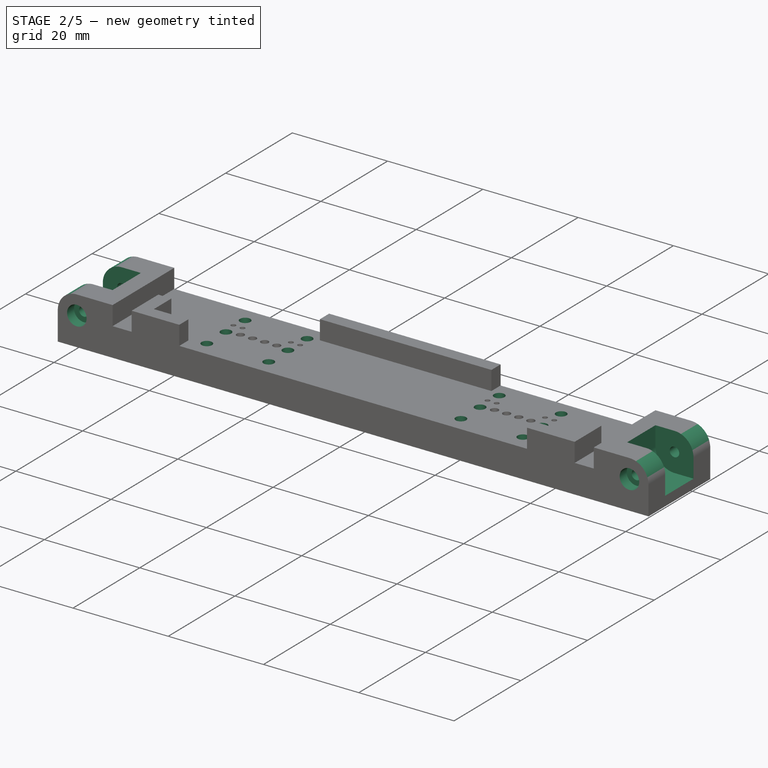
[diagram: stage 2 of 5 — iso view after this stage's code; geometry added in this stage tinted green]
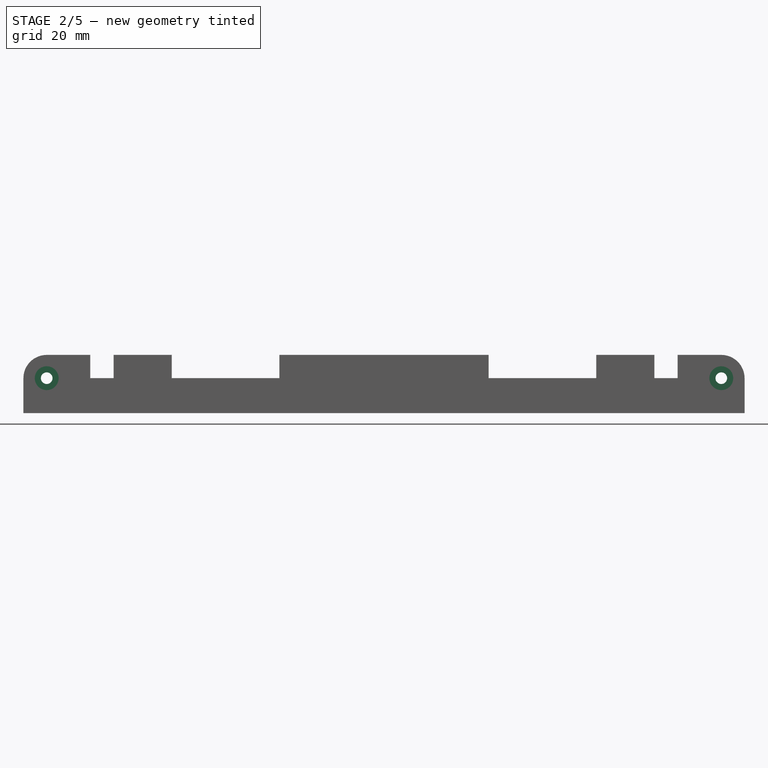
[diagram: stage 2 of 5 — front view after this stage's code; geometry added in this stage tinted green]
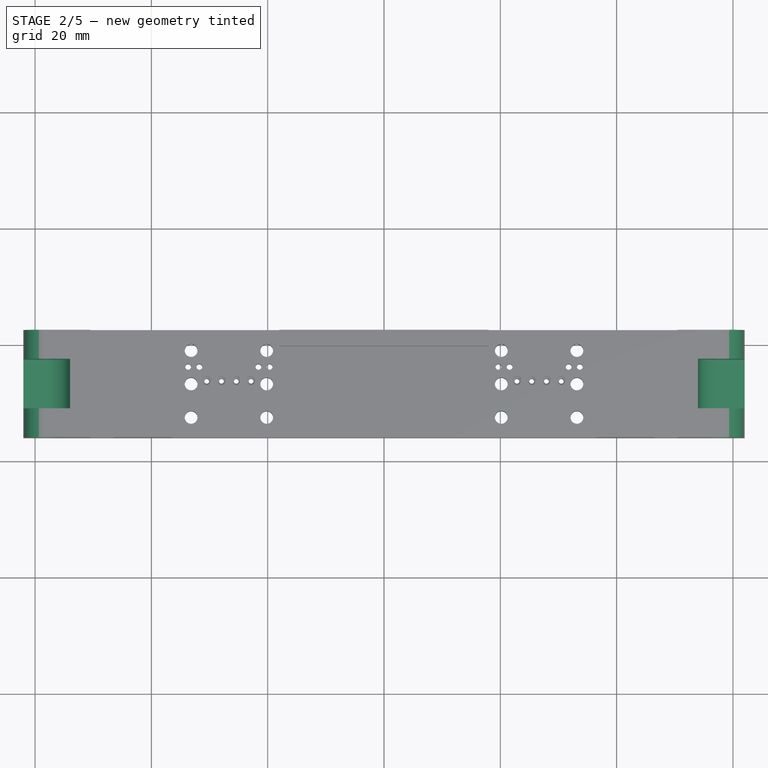
[diagram: stage 2 of 5 — top view after this stage's code; geometry added in this stage tinted green]
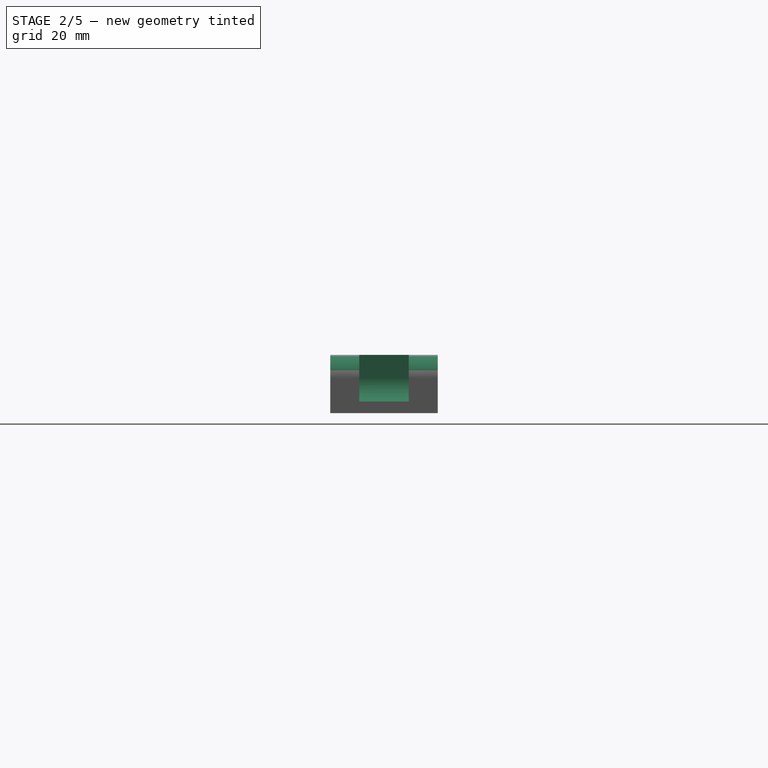
[diagram: stage 2 of 5 — right view after this stage's code; geometry added in this stage tinted green]
FEATURE [Sketcher::SketchObject] Sketch003
  MapMode = 5
  Placement = pos=(0,0,4) rot=(0,0,1;0rad)
  Support = -> [Chamfer001]
  sketch-geometry (30):
    g0: LineSegment [constr] StartX=-33.17 StartY=-12.5 StartZ=0 EndX=-20.17 EndY=-12.5 EndZ=0
    g1: LineSegment [constr] StartX=-20.17 StartY=-12.5 StartZ=0 EndX=-20.17 EndY=-6.75 EndZ=0
    g2: LineSegment [constr] StartX=-20.17 StartY=-6.75 StartZ=0 EndX=-33.17 EndY=-6.75 EndZ=0
    g3: LineSegment [constr] StartX=-33.17 StartY=-6.75 StartZ=0 EndX=-33.17 EndY=-12.5 EndZ=0
    g4: LineSegment [constr] StartX=-33.17 StartY=-6.75 StartZ=0 EndX=-33.17 EndY=-1 EndZ=0
    g5: LineSegment [constr] StartX=-33.17 StartY=-1 StartZ=0 EndX=-20.17 EndY=-1 EndZ=0
    g6: LineSegment [constr] StartX=-20.17 StartY=-1 StartZ=0 EndX=-20.17 EndY=-6.75 EndZ=0
    g7: Circle CenterX=-33.17 CenterY=-1 CenterZ=0 NormalX=0 NormalY=0 NormalZ=1 AngleXU=0 Radius=1.1
    g8: Circle CenterX=-20.17 CenterY=-1 CenterZ=0 NormalX=0 NormalY=0 NormalZ=1 AngleXU=0 Radius=1.1
    g9: Circle CenterX=-33.17 CenterY=-6.75 CenterZ=0 NormalX=0 NormalY=0 NormalZ=1 AngleXU=0 Radius=1.1
    g10: Circle CenterX=-20.17 CenterY=-6.75 CenterZ=0 NormalX=0 NormalY=0 NormalZ=1 AngleXU=0 Radius=1.1
    g11: Circle CenterX=-20.17 CenterY=-12.5 CenterZ=0 NormalX=0 NormalY=0 NormalZ=1 AngleXU=0 Radius=1.1
    g12: Circle CenterX=-33.17 CenterY=-12.5 CenterZ=0 NormalX=0 NormalY=0 NormalZ=1 AngleXU=0 Radius=1.1
    g13: LineSegment [constr] StartX=-33.17 StartY=-6.75 StartZ=0 EndX=-26.67 EndY=0 EndZ=0
    g14: LineSegment [constr] StartX=-26.67 StartY=0 StartZ=0 EndX=-20.17 EndY=-6.75 EndZ=0
    g15: LineSegment [constr] StartX=20.17 StartY=-12.5 StartZ=0 EndX=33.17 EndY=-12.5 EndZ=0
    g16: LineSegment [constr] StartX=33.17 StartY=-12.5 StartZ=0 EndX=33.17 EndY=-6.75 EndZ=0
    g17: LineSegment [constr] StartX=33.17 StartY=-6.75 StartZ=0 EndX=20.17 EndY=-6.75 EndZ=0
    g18: LineSegment [constr] StartX=20.17 StartY=-6.75 StartZ=0 EndX=20.17 EndY=-12.5 EndZ=0
    g19: LineSegment [constr] StartX=20.17 StartY=-6.75 StartZ=0 EndX=20.17 EndY=-1 EndZ=0
    g20: LineSegment [constr] StartX=20.17 StartY=-1 StartZ=0 EndX=33.17 EndY=-1 EndZ=0
    g21: LineSegment [constr] StartX=33.17 StartY=-1 StartZ=0 EndX=33.17 EndY=-6.75 EndZ=0
    g22: Circle CenterX=20.17 CenterY=-1 CenterZ=0 NormalX=0 NormalY=0 NormalZ=1 AngleXU=0 Radius=1.1
    g23: Circle CenterX=33.17 CenterY=-1 CenterZ=0 NormalX=0 NormalY=0 NormalZ=1 AngleXU=0 Radius=1.1
    g24: Circle CenterX=20.17 CenterY=-6.75 CenterZ=0 NormalX=0 NormalY=0 NormalZ=1 AngleXU=0 Radius=1.1
    g25: Circle CenterX=33.17 CenterY=-6.75 CenterZ=0 NormalX=0 NormalY=0 NormalZ=1 AngleXU=0 Radius=1.1
    g26: Circle CenterX=33.17 CenterY=-12.5 CenterZ=0 NormalX=0 NormalY=0 NormalZ=1 AngleXU=0 Radius=1.1
    g27: Circle CenterX=20.17 CenterY=-12.5 CenterZ=0 NormalX=0 NormalY=0 NormalZ=1 AngleXU=0 Radius=1.1
    g28: LineSegment [constr] StartX=20.17 StartY=-6.75 StartZ=0 EndX=26.67 EndY=9e-16 EndZ=0
    g29: LineSegment [constr] StartX=26.67 StartY=9e-16 StartZ=0 EndX=33.17 EndY=-6.75 EndZ=0
  constraints (74):
    c: Coincident(g0,g1)
    c: Coincident(g1,g2)
    c: Coincident(g2,g3)
    c: Coincident(g3,g0)
    c: Horizontal(g0)
    c: Horizontal(g2)
    c: Vertical(g1)
    c: Vertical(g3)
    c: Coincident(g4,g2)
    c: Vertical(g4)
    c: Coincident(g5,g4)
    c: Horizontal(g5)
    c: Coincident(g6,g5)
    c: Coincident(g6,g1)
    c: Vertical(g6)
    c: Coincident(g7,g4)
    c: Coincident(g8,g5)
    c: Coincident(g9,g2)
    c: Coincident(g10,g1)
    c: Coincident(g11,g0)
    c: Coincident(g12,g0)
    c: Radius(g7) = 1.1
    c: Equal(g7,g8)
    c: Equal(g7,g10)
    c: Equal(g7,g9)
    c: Equal(g7,g12)
    c: Equal(g7,g11)
    c: Equal(g3,g4)
    c: Coincident(g13,g9)
    c: PointOnObject(g13,g-1)
    c: Coincident(g14,g13)
    c: Coincident(g14,g10)
    c: Equal(g13,g14)
    c: Coincident(g15,g16)
    c: Coincident(g16,g17)
    c: Coincident(g17,g18)
    c: Coincident(g18,g15)
    c: Horizontal(g15)
    c: Horizontal(g17)
    c: Vertical(g16)
    c: Vertical(g18)
    c: Coincident(g19,g17)
    c: Vertical(g19)
    c: Coincident(g20,g19)
    c: Horizontal(g20)
    c: Coincident(g21,g20)
    c: Coincident(g21,g16)
    c: Vertical(g21)
    c: Coincident(g22,g19)
    c: Coincident(g23,g20)
    c: Coincident(g24,g17)
    c: Coincident(g25,g16)
    c: Coincident(g26,g15)
    c: Coincident(g27,g15)
    c: Equal(g7,g22) = 1.5
    c: Equal(g22,g23)
    c: Equal(g22,g25)
    c: Equal(g22,g24)
    c: Equal(g22,g27)
    c: Equal(g22,g26)
    c: Equal(g18,g19)
    c: Coincident(g28,g24)
    c: Coincident(g29,g28)
    c: Coincident(g29,g25)
    c: Equal(g28,g29)
    c: PointOnObject(g28,g-1)
    c: Equal(g18,g1)
    c: Equal(g28,g14)
    c: DistanceX(g13,g-1) = 26.67
    c: DistanceX(g-1,g28) = 26.67
    c: Equal(g17,g2)
    c: DistanceY(g8,g-1) = 1
    c: DistanceY(g12,g-1) = 12.5
    c: DistanceX(g5,g5) = 13
FEATURE [PartDesign::Pocket] Pocket
  BaseFeature = -> Chamfer001
  Length = 5
  Length2 = 100
  Profile = -> Sketch003
  Refine = true
  Type = 1
FEATURE [PartDesign::Chamfer] Chamfer002  label="Eject Chamfer"
  Base = -> Pocket [Edge30,Edge21,Edge31,Edge27,Edge20,Edge19,Edge8,Edge7,Edge32,Edge12,Edge28,Edge18]
  BaseFeature = -> Pocket
  Size = 0.7
FEATURE [Sketcher::SketchObject] Sketch004
  ExternalGeometry = -> [Chamfer002]
  MapMode = 5
  Placement = pos=(0,0,4) rot=(0,0,1;0rad)
  Support = -> [Chamfer002]
  sketch-geometry (10):
    g0: LineSegment StartX=-62 StartY=-11 StartZ=0 EndX=-54 EndY=-11 EndZ=0
    g1: LineSegment StartX=-54 StartY=-11 StartZ=0 EndX=-54 EndY=-2.5 EndZ=0
    g2: LineSegment StartX=-54 StartY=-2.5 StartZ=0 EndX=-62 EndY=-2.5 EndZ=0
    g3: LineSegment StartX=-62 StartY=-2.5 StartZ=0 EndX=-62 EndY=-11 EndZ=0
    g4: LineSegment StartX=62 StartY=-2.5 StartZ=0 EndX=54 EndY=-2.5 EndZ=0
    g5: LineSegment StartX=54 StartY=-2.5 StartZ=0 EndX=54 EndY=-11 EndZ=0
    g6: LineSegment StartX=54 StartY=-11 StartZ=0 EndX=62 EndY=-11 EndZ=0
    g7: LineSegment StartX=62 StartY=-11 StartZ=0 EndX=62 EndY=-2.5 EndZ=0
    g8: LineSegment [constr] StartX=-54 StartY=-2.5 StartZ=0 EndX=54 EndY=-2.5 EndZ=0
    g9: LineSegment [constr] StartX=54 StartY=-11 StartZ=0 EndX=-54 EndY=-11 EndZ=0
  constraints (28):
    c: Coincident(g0,g1)
    c: Coincident(g1,g2)
    c: Coincident(g2,g3)
    c: Coincident(g3,g0)
    c: Horizontal(g0)
    c: Horizontal(g2)
    c: Vertical(g1)
    c: Vertical(g3)
    c: PointOnObject(g0,g-3)
    c: DistanceY(g2,g-3) = 5
    c: DistanceY(g-3,g0) = 5
    c: DistanceX(g2,g2) = 8
    c: Coincident(g4,g5)
    c: Coincident(g5,g6)
    c: Coincident(g6,g7)
    c: Coincident(g7,g4)
    c: Horizontal(g4)
    c: Horizontal(g6)
    c: Vertical(g5)
    c: PointOnObject(g4,g-4)
    c: PointOnObject(g6,g-4)
    c: Coincident(g8,g1)
    c: Coincident(g8,g4)
    c: Horizontal(g8)
    c: Coincident(g9,g5)
    c: Coincident(g9,g0)
    c: Horizontal(g9)
    c: Equal(g6,g0)
FEATURE [PartDesign::Pocket] Pocket001
  BaseFeature = -> Chamfer002
  Length = 8
  Length2 = 100
  Profile = -> Sketch004
  Refine = true
  Type = 0
FEATURE [Sketcher::SketchObject] Sketch014
  ExternalGeometry = -> [Pocket001]
  MapMode = 5
  Placement = pos=(0,-16,0) rot=(1,0,0;1.5708rad)
  Support = -> [Pocket001]
  sketch-geometry (6):
    g0: Circle CenterX=-58 CenterY=0 CenterZ=0 NormalX=0 NormalY=0 NormalZ=1 AngleXU=0 Radius=2.15337
    g1: Circle CenterX=58 CenterY=-2e-16 CenterZ=0 NormalX=0 NormalY=0 NormalZ=1 AngleXU=0 Radius=2.0775
    g2: LineSegment [constr] StartX=58 StartY=-2e-16 StartZ=0 EndX=62 EndY=-2e-16 EndZ=0
    g3: LineSegment [constr] StartX=62 StartY=-2e-16 StartZ=0 EndX=62 EndY=4 EndZ=0
    g4: LineSegment [constr] StartX=-58 StartY=0 StartZ=0 EndX=-62 EndY=0 EndZ=0
    g5: LineSegment [constr] StartX=-62 StartY=4 StartZ=0 EndX=-62 EndY=0 EndZ=0
  constraints (14):
    c: Coincident(g2,g1)
    c: PointOnObject(g2,g-3)
    c: Coincident(g3,g2)
    c: Coincident(g3,g-3)
    c: Horizontal(g2)
    c: Coincident(g4,g0)
    c: PointOnObject(g4,g-4)
    c: Coincident(g5,g-4)
    c: Coincident(g5,g4)
    c: Horizontal(g4)
    c: Equal(g4,g5)
    c: Equal(g5,g2)
    c: Equal(g2,g3)
    c: DistanceY(g3,g3) = 4
FEATURE [PartDesign::Hole] Hole003
  BaseFeature = -> Pocket001
  Depth = 25
  DepthType = 1
  Diameter = 2
  DrillPoint = 0
  DrillPointAngle = 118
  HoleCutCountersinkAngle = 90
  HoleCutDepth = 2.1
  HoleCutDiameter = 4.1
  HoleCutType = 1
  ModelActualThread = false
  Profile = -> Sketch014
  Refine = true
  Tapered = false
  TaperedAngle = 90
  ThreadAngle = 0
  ThreadClass = 0
  ThreadCutOffInner = 0
  ThreadCutOffOuter = 0
  ThreadDirection = 0
  ThreadFit = 0
  ThreadPitch = 0
  ThreadSize = 0
  ThreadType = 0
  Threaded = false
FEATURE [PartDesign::Fillet] Fillet
  Base = -> Hole003 [Edge49,Edge53,Edge59,Edge55,Edge200,Edge193]
  BaseFeature = -> Hole003
  Radius = 4
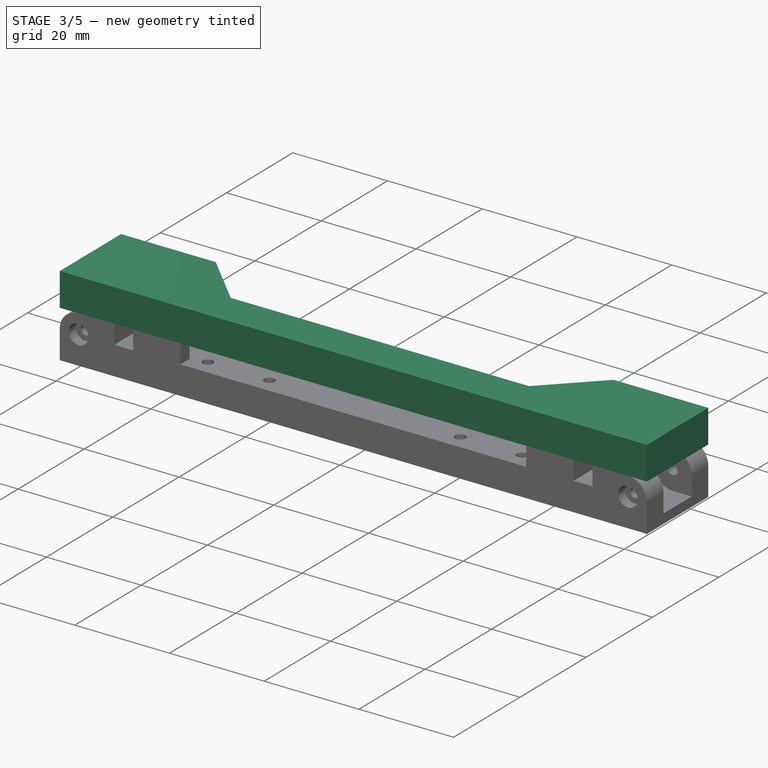
[diagram: stage 3 of 5 — iso view after this stage's code; geometry added in this stage tinted green]
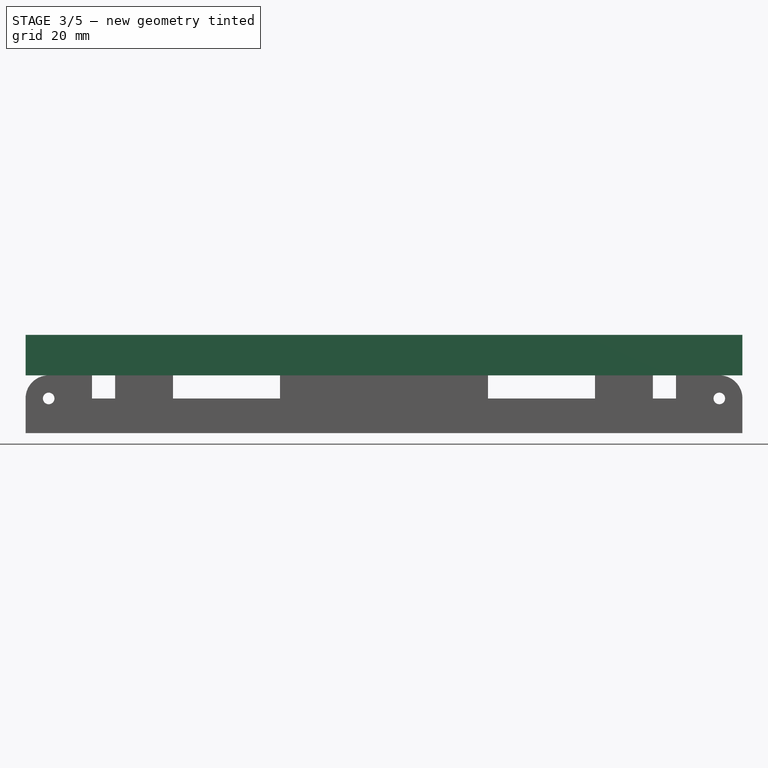
[diagram: stage 3 of 5 — front view after this stage's code; geometry added in this stage tinted green]
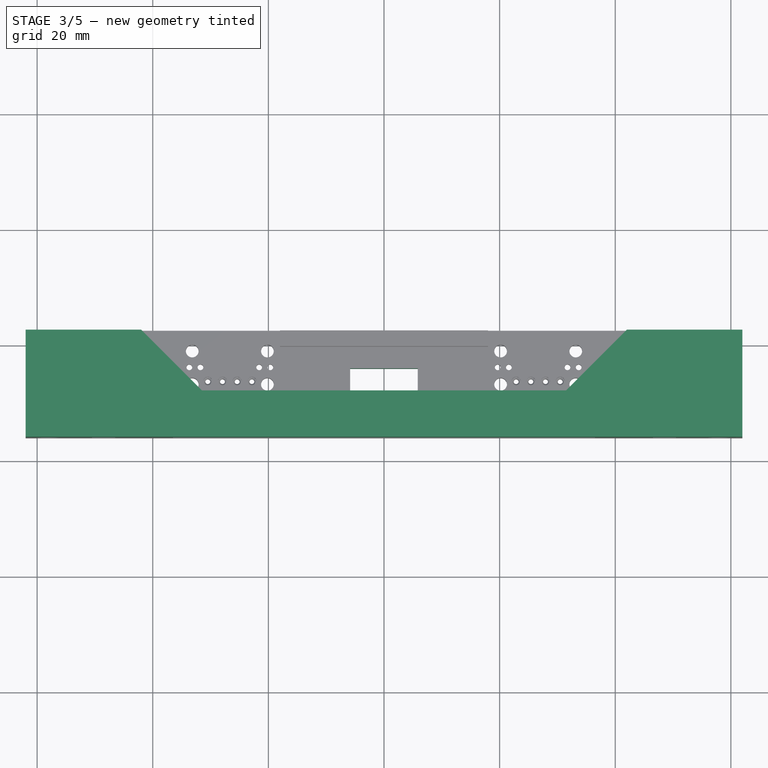
[diagram: stage 3 of 5 — top view after this stage's code; geometry added in this stage tinted green]
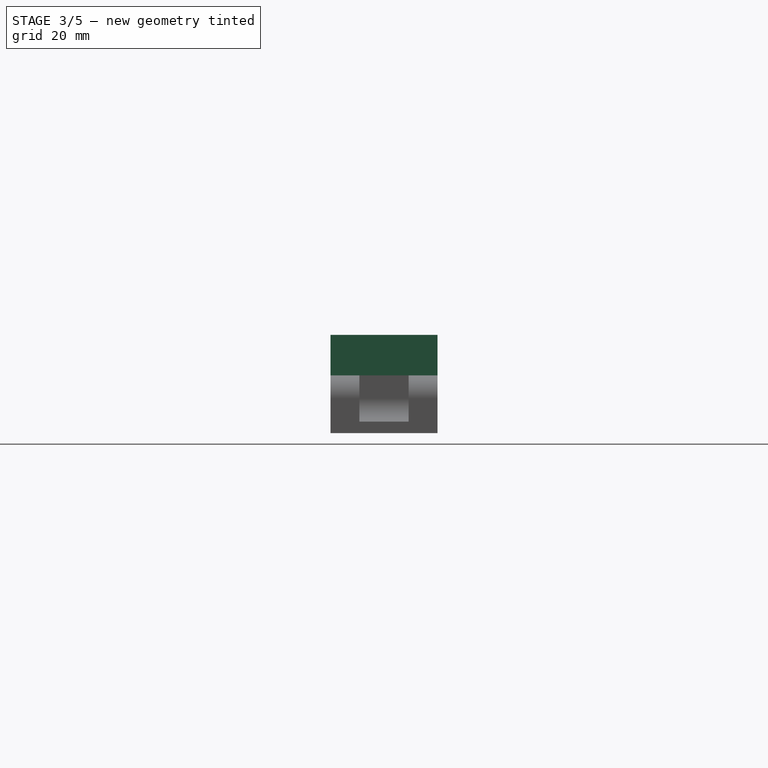
[diagram: stage 3 of 5 — right view after this stage's code; geometry added in this stage tinted green]
FEATURE [Sketcher::SketchObject] Sketch006
  AttachmentOffset = pos=(0,0,4) rot=(0,0,1;0rad)
  MapMode = 5
  Placement = pos=(0,0,4) rot=(0,0,1;0rad)
  Support = -> [XY_Plane072]
  sketch-geometry (12):
    g0: LineSegment StartX=-62 StartY=2.5 StartZ=0 EndX=-62 EndY=-16 EndZ=0
    g1: LineSegment StartX=-62 StartY=-16 StartZ=0 EndX=62 EndY=-16 EndZ=0
    g2: LineSegment StartX=62 StartY=-16 StartZ=0 EndX=62 EndY=2.5 EndZ=0
    g3: LineSegment StartX=62 StartY=2.5 StartZ=0 EndX=42 EndY=2.5 EndZ=0
    g4: LineSegment StartX=42 StartY=2.5 StartZ=0 EndX=31.5 EndY=-8 EndZ=0
    g5: LineSegment StartX=31.5 StartY=-8 StartZ=0 EndX=-31.5 EndY=-8 EndZ=0
    g6: LineSegment StartX=-31.5 StartY=-8 StartZ=0 EndX=-42 EndY=2.5 EndZ=0
    g7: LineSegment StartX=-42 StartY=2.5 StartZ=0 EndX=-62 EndY=2.5 EndZ=0
    g8: LineSegment [constr] StartX=0 StartY=0 StartZ=0 EndX=-62 EndY=-16 EndZ=0
    g9: LineSegment [constr] StartX=0 StartY=0 StartZ=0 EndX=62 EndY=-16 EndZ=0
    g10: LineSegment [constr] StartX=-31.5 StartY=-8 StartZ=0 EndX=0 EndY=0 EndZ=0
    g11: LineSegment [constr] StartX=0 StartY=0 StartZ=0 EndX=31.5 EndY=-8 EndZ=0
  constraints (32):
    c: Vertical(g0)
    c: Coincident(g0,g1)
    c: Horizontal(g1)
    c: Coincident(g1,g2)
    c: Coincident(g2,g3)
    c: Horizontal(g3)
    c: Coincident(g3,g4)
    c: Coincident(g4,g5)
    c: Horizontal(g5)
    c: Coincident(g5,g6)
    c: Coincident(g6,g7)
    c: Horizontal(g7)
    c: Coincident(g7,g0)
    c: Coincident(g8,g-1)
    c: Coincident(g8,g0)
    c: Coincident(g9,g-1)
    c: Coincident(g9,g1)
    c: Equal(g9,g8)
    c: DistanceX(g1,g1) = 124
    c: DistanceY(g0,g-1) = 16
    c: DistanceY(g-1,g0) = 2.5
    c: Coincident(g10,g5)
    c: Coincident(g10,g-1)
    c: Coincident(g11,g-1)
    c: Coincident(g11,g4)
    c: Equal(g11,g10)
    c: Equal(g4,g6)
    c: Equal(g2,g0)
    c: Vertical(g2)
    c: DistanceX(g7,g7) = 20
    c: DistanceY(g5,g-1) = 8
    c: Angle(g7,g6) = 2.35619
FEATURE [PartDesign::Pad] Pad002
  Length = 7
  Length2 = 100
  Profile = -> Sketch006
  Refine = true
  Type = 0
FEATURE [Sketcher::SketchObject] Sketch015
  ExternalGeometry = -> [Fillet]
  MapMode = 5
  Placement = pos=(0,2.5,0) rot=(0,0.707107,0.707107;3.14159rad)
  Support = -> [Fillet]
  sketch-geometry (14):
    g0: LineSegment StartX=-56.8453 StartY=2 StartZ=0 EndX=-59.1547 EndY=2 EndZ=0
    g1: LineSegment StartX=-59.1547 StartY=2 StartZ=0 EndX=-60.3094 EndY=-4.4e-15 EndZ=0
    g2: LineSegment StartX=-60.3094 StartY=-4.2e-15 StartZ=0 EndX=-59.1547 EndY=-2 EndZ=0
    g3: LineSegment StartX=-59.1547 StartY=-2 StartZ=0 EndX=-56.8453 EndY=-2 EndZ=0
    g4: LineSegment StartX=-56.8453 StartY=-2 StartZ=0 EndX=-55.6906 EndY=-4.4e-15 EndZ=0
    g5: LineSegment StartX=-55.6906 StartY=-4.4e-15 StartZ=0 EndX=-56.8453 EndY=2 EndZ=0
    g6: Circle [constr] CenterX=-58 CenterY=-4.3e-15 CenterZ=0 NormalX=0 NormalY=0 NormalZ=1 AngleXU=0 Radius=2.3094
    g7: LineSegment StartX=55.6906 StartY=-3.6e-15 StartZ=0 EndX=56.8453 EndY=-2 EndZ=0
    g8: LineSegment StartX=56.8453 StartY=-2 StartZ=0 EndX=59.1547 EndY=-2 EndZ=0
    g9: LineSegment StartX=59.1547 StartY=-2 StartZ=0 EndX=60.3094 EndY=-4e-15 EndZ=0
    g10: LineSegment StartX=60.3094 StartY=-4e-15 StartZ=0 EndX=59.1547 EndY=2 EndZ=0
    g11: LineSegment StartX=59.1547 StartY=2 StartZ=0 EndX=56.8453 EndY=2 EndZ=0
    g12: LineSegment StartX=56.8453 StartY=2 StartZ=0 EndX=55.6906 EndY=-3.6e-15 EndZ=0
    g13: Circle [constr] CenterX=58 CenterY=-3.9e-15 CenterZ=0 NormalX=0 NormalY=0 NormalZ=1 AngleXU=0 Radius=2.3094
  constraints (32):
    c: Coincident(g0,g1)
    c: Coincident(g1,g2)
    c: Coincident(g2,g3)
    c: Coincident(g3,g4)
    c: Coincident(g4,g5)
    c: Coincident(g5,g0)
    c: Equal(g0, g1-g5) x5
    c: PointOnObject(g0,g6)
    c: PointOnObject(g1,g6)
    c: PointOnObject(g2,g6)
    c: PointOnObject(g3,g6)
    c: PointOnObject(g4,g6)
    c: PointOnObject(g5,g6)
    c: Coincident(g6,g-4)
    c: Coincident(g7,g8)
    c: Coincident(g8,g9)
    c: Coincident(g9,g10)
    c: Coincident(g10,g11)
    c: Coincident(g11,g12)
    c: Coincident(g12,g7)
    c: Equal(g7, g8-g12) x5
    c: PointOnObject(g7,g13)
    c: PointOnObject(g8,g13)
    c: PointOnObject(g9,g13)
    c: PointOnObject(g10,g13)
    c: PointOnObject(g11,g13)
    c: PointOnObject(g12,g13)
    c: Coincident(g13,g-3)
    c: Horizontal(g11)
    c: Horizontal(g0)
    c: Equal(g0,g11)
    c: DistanceY(g2,g0) = 4
FEATURE [PartDesign::Pocket] Pocket002
  BaseFeature = -> Fillet
  Length = 2.1
  Length2 = 100
  Profile = -> Sketch015
  Refine = true
  Type = 0
FEATURE [Sketcher::SketchObject] Sketch022
  MapMode = 5
  Placement = pos=(0,0,-6) rot=(1,0,0;3.14159rad)
  Support = -> [Pocket002]
  sketch-geometry (6):
    g0: LineSegment StartX=-5.84864 StartY=4 StartZ=0 EndX=5.84864 EndY=4 EndZ=0
    g1: LineSegment StartX=5.84864 StartY=4 StartZ=0 EndX=5.84864 EndY=12 EndZ=0
    g2: LineSegment StartX=5.84864 StartY=12 StartZ=0 EndX=-5.84864 EndY=12 EndZ=0
    g3: LineSegment StartX=-5.84864 StartY=12 StartZ=0 EndX=-5.84864 EndY=4 EndZ=0
    g4: LineSegment [constr] StartX=-5.84864 StartY=4 StartZ=0 EndX=0 EndY=0 EndZ=0
    g5: LineSegment [constr] StartX=0 StartY=0 StartZ=0 EndX=5.84864 EndY=4 EndZ=0
  constraints (15):
    c: Coincident(g0,g1)
    c: Coincident(g1,g2)
    c: Coincident(g2,g3)
    c: Coincident(g3,g0)
    c: Horizontal(g0)
    c: Horizontal(g2)
    c: Vertical(g1)
    c: Vertical(g3)
    c: Coincident(g4,g0)
    c: Coincident(g4,g-1)
    c: Coincident(g5,g-1)
    c: Coincident(g5,g0)
    c: Equal(g5,g4)
    c: DistanceY(g-1,g0) = 4
    c: DistanceY(g0,g2) = 8
FEATURE [PartDesign::Pocket] Pocket005
  BaseFeature = -> Pocket002
  Length = 3
  Length2 = 100
  Profile = -> Sketch022
  Refine = true
  Type = 0
FEATURE [Sketcher::SketchObject] Sketch023
  ExternalGeometry = -> [Pocket005]
  MapMode = 5
  Placement = pos=(0,0,-3) rot=(1,0,0;3.14159rad)
  Support = -> [Pocket005]
  sketch-geometry (4):
    g0: LineSegment StartX=-5.84864 StartY=4 StartZ=0 EndX=5.84864 EndY=4 EndZ=0
    g1: LineSegment StartX=5.84864 StartY=4 StartZ=0 EndX=5.84864 EndY=9 EndZ=0
    g2: LineSegment StartX=5.84864 StartY=9 StartZ=0 EndX=-5.84864 EndY=9 EndZ=0
    g3: LineSegment StartX=-5.84864 StartY=9 StartZ=0 EndX=-5.84864 EndY=4 EndZ=0
  constraints (10):
    c: Coincident(g0,g1)
    c: Coincident(g1,g2)
    c: Coincident(g2,g3)
    c: Coincident(g3,g0)
    c: Horizontal(g2)
    c: Vertical(g1)
    c: Vertical(g3)
    c: Coincident(g0,g-3)
    c: Coincident(g0,g-3)
    c: DistanceY(g3,g3) = 5
FEATURE [PartDesign::Pocket] Pocket006
  BaseFeature = -> Pocket005
  Length = 5
  Length2 = 100
  Profile = -> Sketch023
  Refine = true
  Type = 0
FEATURE [PartDesign::Body] Body001  label="Upper"
  Group = -> [Sketch006,Pad002,Sketch007,Pad003,Chamfer003,Sketch019,Pocket003,Sketch020,Pocket004,Sketch024,Pad006,Sketch025,Pad007,Chamfer005,Sketch026,Pad008]
  Origin = -> Origin072
  Tip = -> Pad008
FEATURE [Sketcher::SketchObject] Sketch027
  ExternalGeometry = -> [Pocket006]
  MapMode = 5
  Placement = pos=(0,0,-6) rot=(1,0,0;3.14159rad)
  Support = -> [Pocket006]
  sketch-geometry (8):
    g0: ArcOfCircle CenterX=-33.67 CenterY=3.81 CenterZ=0 NormalX=0 NormalY=0 NormalZ=1 AngleXU=0 Radius=0.9 StartAngle=1.5708 EndAngle=4.71239
    g1: ArcOfCircle CenterX=-19.67 CenterY=3.81 CenterZ=0 NormalX=0 NormalY=0 NormalZ=1 AngleXU=0 Radius=0.9 StartAngle=4.71239 EndAngle=7.85398
    g2: LineSegment StartX=-33.67 StartY=2.91 StartZ=0 EndX=-19.67 EndY=2.91 EndZ=0
    g3: LineSegment StartX=-33.67 StartY=4.71 StartZ=0 EndX=-19.67 EndY=4.71 EndZ=0
    g4: ArcOfCircle CenterX=19.67 CenterY=3.81 CenterZ=0 NormalX=0 NormalY=0 NormalZ=1 AngleXU=0 Radius=0.9 StartAngle=1.5708 EndAngle=4.71239
    g5: ArcOfCircle CenterX=33.67 CenterY=3.81 CenterZ=0 NormalX=0 NormalY=0 NormalZ=1 AngleXU=0 Radius=0.9 StartAngle=4.71239 EndAngle=7.85398
    g6: LineSegment StartX=19.67 StartY=2.91 StartZ=0 EndX=33.67 EndY=2.91 EndZ=0
    g7: LineSegment StartX=19.67 StartY=4.71 StartZ=0 EndX=33.67 EndY=4.71 EndZ=0
  constraints (16):
    c: Tangent(g0,g3) = 1.5708
    c: Tangent(g0,g2) = -1.5708
    c: Tangent(g2,g1) = -1.5708
    c: Tangent(g3,g1) = 1.5708
    c: Equal(g0,g1)
    c: Coincident(g0,g-4)
    c: Coincident(g1,g-3)
    c: Tangent(g4,g7) = 1.5708
    c: Tangent(g4,g6) = -1.5708
    c: Tangent(g6,g5) = -1.5708
    c: Tangent(g7,g5) = 1.5708
    c: Equal(g4,g5)
    c: Coincident(g4,g-5)
    c: Coincident(g5,g-6)
    c: Radius(g1) = 0.9
    c: Equal(g1,g4)
FEATURE [PartDesign::Pocket] Pocket007
  BaseFeature = -> Pocket006
  Length = 2
  Length2 = 100
  Profile = -> Sketch027
  Refine = true
  Type = 0
FEATURE [PartDesign::Body] Body  label="Lower"
  Group = -> [Sketch,Pad,Sketch001,Hole,Chamfer,Sketch002,Pad001,Chamfer001,Sketch003,Pocket,Chamfer002,Sketch004,Pocket001,Sketch014,Hole003,Fillet,Sketch015,Pocket002,Sketch022,Pocket005,Sketch023,Pocket006,Sketch027,Pocket007]
  Origin = -> Origin071
  Tip = -> Pocket007
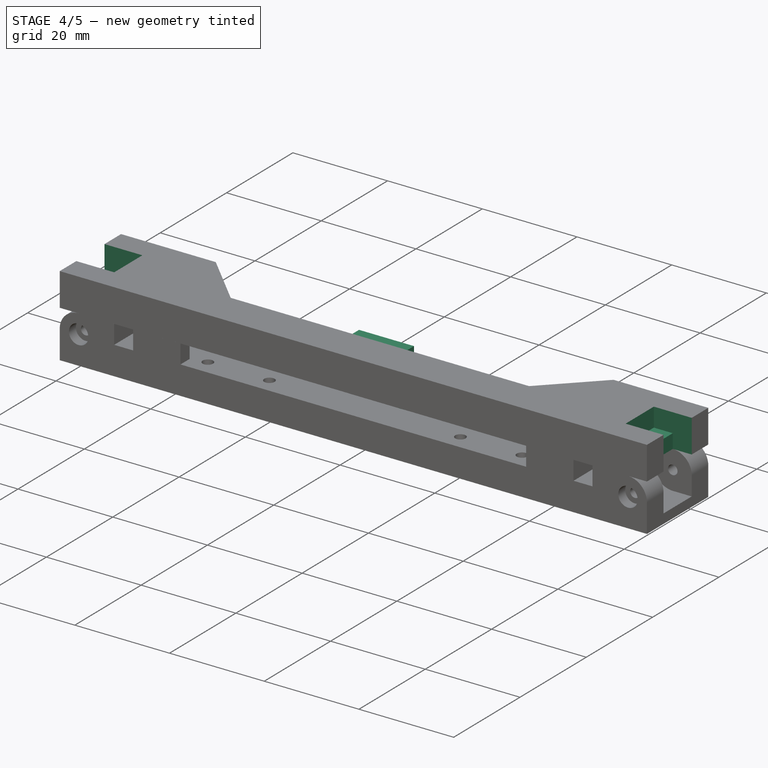
[diagram: stage 4 of 5 — iso view after this stage's code; geometry added in this stage tinted green]
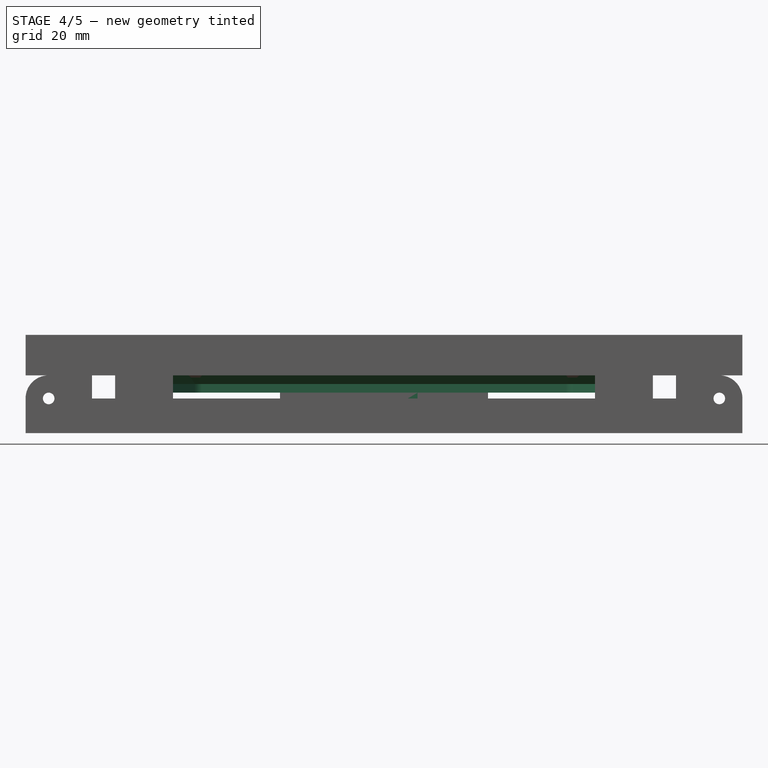
[diagram: stage 4 of 5 — front view after this stage's code; geometry added in this stage tinted green]
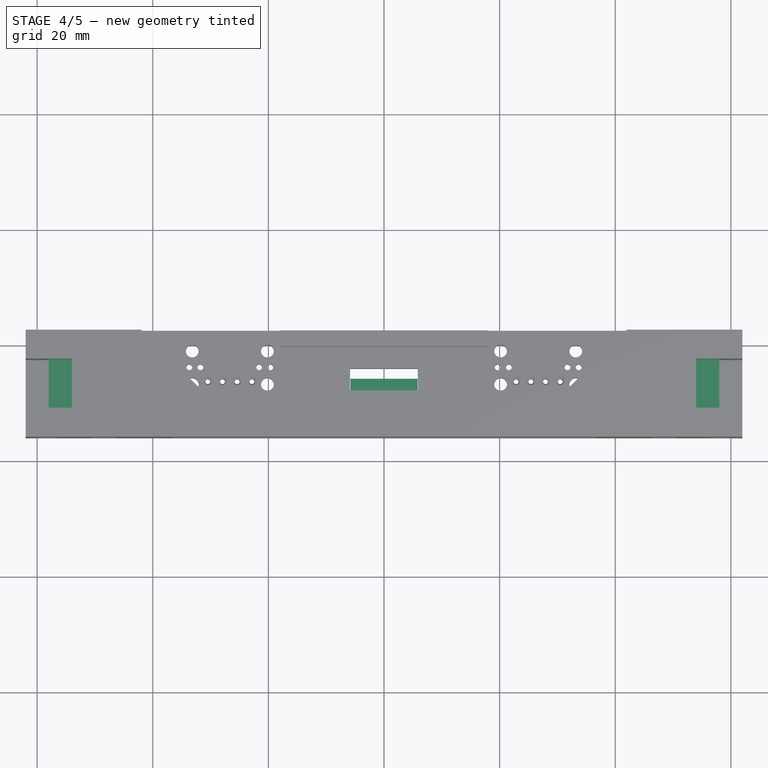
[diagram: stage 4 of 5 — top view after this stage's code; geometry added in this stage tinted green]
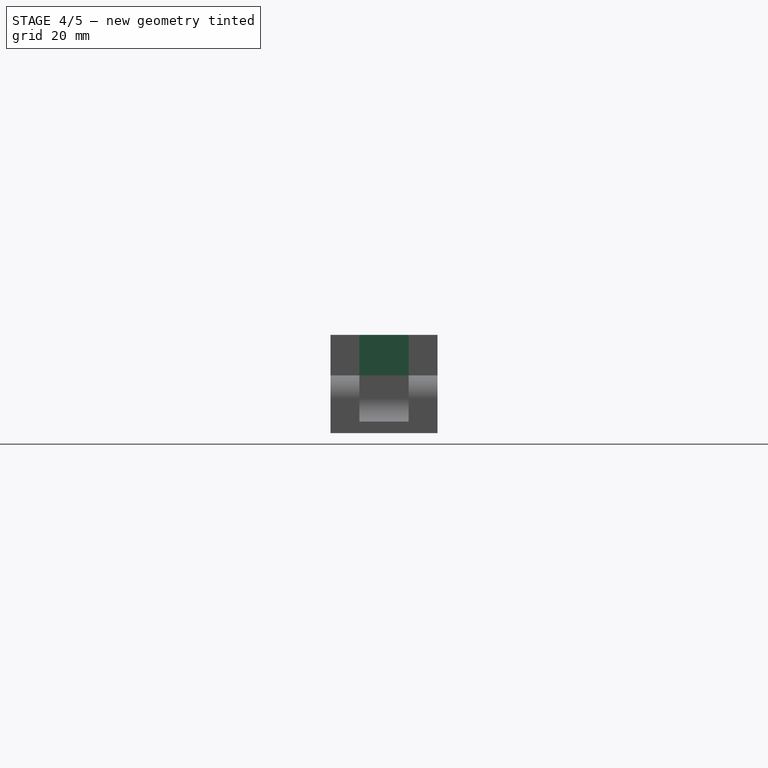
[diagram: stage 4 of 5 — right view after this stage's code; geometry added in this stage tinted green]
FEATURE [Sketcher::SketchObject] Sketch007
  ExternalGeometry = -> [Pad002]
  MapMode = 5
  Placement = pos=(0,0,4) rot=(1,0,0;3.14159rad)
  Support = -> [Pad002]
  sketch-geometry (14):
    g0: LineSegment StartX=-31.5 StartY=8 StartZ=0 EndX=31.5 EndY=8 EndZ=0
    g1: LineSegment [constr] StartX=31.5 StartY=8 StartZ=0 EndX=31.5 EndY=9.8 EndZ=0
    g2: LineSegment StartX=31.5 StartY=9.8 StartZ=0 EndX=-31.5 EndY=9.8 EndZ=0
    g3: LineSegment [constr] StartX=-31.5 StartY=9.8 StartZ=0 EndX=-31.5 EndY=8 EndZ=0
    g4: LineSegment StartX=-31.5 StartY=8 StartZ=0 EndX=-37.2933 EndY=2.20674 EndZ=0
    g5: LineSegment StartX=-37.2933 StartY=2.20674 StartZ=0 EndX=-38.5661 EndY=3.47953 EndZ=0
    g6: LineSegment StartX=-38.5661 StartY=3.47953 StartZ=0 EndX=-32.7728 EndY=9.27279 EndZ=0
    g7: LineSegment [constr] StartX=-32.7728 StartY=9.27279 StartZ=0 EndX=-31.5 EndY=8 EndZ=0
    g8: LineSegment [constr] StartX=31.5 StartY=8 StartZ=0 EndX=32.7728 EndY=9.27279 EndZ=0
    g9: LineSegment StartX=32.7728 StartY=9.27279 StartZ=0 EndX=38.5661 EndY=3.47953 EndZ=0
    g10: LineSegment StartX=38.5661 StartY=3.47953 StartZ=0 EndX=37.2933 EndY=2.20674 EndZ=0
    g11: LineSegment StartX=37.2933 StartY=2.20674 StartZ=0 EndX=31.5 EndY=8 EndZ=0
    g12: ArcOfCircle CenterX=-31.5 CenterY=8 CenterZ=0 NormalX=0 NormalY=0 NormalZ=1 AngleXU=0 Radius=1.8 StartAngle=1.5708 EndAngle=2.35619
    g13: ArcOfCircle CenterX=31.5 CenterY=8 CenterZ=0 NormalX=0 NormalY=0 NormalZ=1 AngleXU=0 Radius=1.8 StartAngle=0.785398 EndAngle=1.5708
  constraints (35):
    c: Coincident(g0,g1)
    c: Coincident(g1,g2)
    c: Coincident(g2,g3)
    c: Coincident(g3,g0)
    c: Vertical(g1)
    c: Vertical(g3)
    c: Coincident(g0,g-3)
    c: Coincident(g0,g-3)
    c: Horizontal(g2)
    c: DistanceY(g3,g3) = 1.8
    c: Coincident(g4,g0)
    c: PointOnObject(g4,g-4)
    c: Coincident(g5,g4)
    c: Coincident(g6,g5)
    c: Coincident(g7,g6)
    c: Coincident(g7,g0)
    c: Coincident(g8,g0)
    c: Coincident(g9,g8)
    c: Coincident(g10,g9)
    c: PointOnObject(g10,g-5)
    c: Perpendicular(g9,g8)
    c: Perpendicular(g10,g9)
    c: Parallel(g6,g4)
    c: Perpendicular(g6,g5)
    c: Perpendicular(g7,g6)
    c: Coincident(g11,g10)
    c: Coincident(g11,g0)
    c: Parallel(g9,g11)
    c: Equal(g11,g4)
    c: Coincident(g12,g0)
    c: Coincident(g12,g2)
    c: Coincident(g12,g6)
    c: Coincident(g13,g0)
    c: Coincident(g13,g2)
    c: Coincident(g13,g9)
FEATURE [PartDesign::Pad] Pad003
  BaseFeature = -> Pad002
  Length = 3
  Length2 = 100
  Profile = -> Sketch007
  Refine = true
  Type = 0
FEATURE [PartDesign::Chamfer] Chamfer003
  Base = -> Pad003 [Edge13]
  BaseFeature = -> Pad003
  Size = 1.5
FEATURE [PartDesign::Body] Body002  label="Latch"
  Group = -> [Sketch018,Pad005,Chamfer004]
  Origin = -> Origin073
  Tip = -> Chamfer004
FEATURE [Sketcher::SketchObject] Sketch019
  ExternalGeometry = -> [Chamfer003]
  MapMode = 5
  Placement = pos=(0,0,4) rot=(1,0,0;3.14159rad)
  Support = -> [Chamfer003]
  sketch-geometry (10):
    g0: LineSegment StartX=-62 StartY=2.5 StartZ=0 EndX=-58 EndY=2.5 EndZ=0
    g1: LineSegment StartX=-58 StartY=2.5 StartZ=0 EndX=-58 EndY=11 EndZ=0
    g2: LineSegment StartX=-58 StartY=11 StartZ=0 EndX=-62 EndY=11 EndZ=0
    g3: LineSegment StartX=-62 StartY=11 StartZ=0 EndX=-62 EndY=2.5 EndZ=0
    g4: LineSegment StartX=62 StartY=2.5 StartZ=0 EndX=58 EndY=2.5 EndZ=0
    g5: LineSegment StartX=58 StartY=2.5 StartZ=0 EndX=58 EndY=11 EndZ=0
    g6: LineSegment StartX=58 StartY=11 StartZ=0 EndX=62 EndY=11 EndZ=0
    g7: LineSegment StartX=62 StartY=11 StartZ=0 EndX=62 EndY=2.5 EndZ=0
    g8: LineSegment [constr] StartX=-58 StartY=11 StartZ=0 EndX=58 EndY=11 EndZ=0
    g9: LineSegment [constr] StartX=58 StartY=2.5 StartZ=0 EndX=-58 EndY=2.5 EndZ=0
  constraints (28):
    c: Coincident(g0,g1)
    c: Coincident(g1,g2)
    c: Coincident(g2,g3)
    c: Coincident(g3,g0)
    c: Horizontal(g0)
    c: Horizontal(g2)
    c: Vertical(g1)
    c: Vertical(g3)
    c: PointOnObject(g0,g-3)
    c: Coincident(g4,g5)
    c: Coincident(g5,g6)
    c: Coincident(g6,g7)
    c: Coincident(g7,g4)
    c: Horizontal(g4)
    c: Horizontal(g6)
    c: Vertical(g5)
    c: Vertical(g7)
    c: PointOnObject(g4,g-4)
    c: DistanceY(g-4,g4) = 5
    c: DistanceY(g6,g-4) = 5
    c: DistanceX(g6,g6) = 4
    c: Equal(g6,g2)
    c: Coincident(g8,g1)
    c: Coincident(g8,g5)
    c: Horizontal(g8)
    c: Coincident(g9,g4)
    c: Coincident(g9,g0)
    c: Horizontal(g9)
FEATURE [PartDesign::Pocket] Pocket003
  BaseFeature = -> Chamfer003
  Length = 4
  Length2 = 100
  Profile = -> Sketch019
  Refine = true
  Type = 1
FEATURE [Sketcher::SketchObject] Sketch020
  ExternalGeometry = -> [Pocket003]
  MapMode = 5
  Placement = pos=(0,0,11) rot=(0,0,1;0rad)
  Support = -> [Pocket003]
  sketch-geometry (8):
    g0: LineSegment StartX=-58 StartY=-11 StartZ=0 EndX=-54 EndY=-11 EndZ=0
    g1: LineSegment StartX=-54 StartY=-11 StartZ=0 EndX=-54 EndY=-2.5 EndZ=0
    g2: LineSegment StartX=-54 StartY=-2.5 StartZ=0 EndX=-58 EndY=-2.5 EndZ=0
    g3: LineSegment StartX=-58 StartY=-2.5 StartZ=0 EndX=-58 EndY=-11 EndZ=0
    g4: LineSegment StartX=58 StartY=-2.5 StartZ=0 EndX=54 EndY=-2.5 EndZ=0
    g5: LineSegment StartX=54 StartY=-2.5 StartZ=0 EndX=54 EndY=-11 EndZ=0
    g6: LineSegment StartX=54 StartY=-11 StartZ=0 EndX=58 EndY=-11 EndZ=0
    g7: LineSegment StartX=58 StartY=-11 StartZ=0 EndX=58 EndY=-2.5 EndZ=0
  constraints (20):
    c: Coincident(g0,g1)
    c: Coincident(g1,g2)
    c: Coincident(g2,g3)
    c: Coincident(g3,g0)
    c: Horizontal(g0)
    c: Horizontal(g2)
    c: Vertical(g1)
    c: Coincident(g0,g-3)
    c: Coincident(g4,g5)
    c: Coincident(g5,g6)
    c: Coincident(g6,g7)
    c: Coincident(g7,g4)
    c: Horizontal(g4)
    c: Horizontal(g6)
    c: Vertical(g5)
    c: Coincident(g4,g-4)
    c: Coincident(g6,g-4)
    c: Coincident(g2,g-3)
    c: Equal(g2,g4)
    c: DistanceX(g2,g2) = 4
FEATURE [PartDesign::Pocket] Pocket004
  BaseFeature = -> Pocket003
  Length = 4
  Length2 = 100
  Profile = -> Sketch020
  Refine = true
  Type = 0
FEATURE [Sketcher::SketchObject] Sketch024
  ExternalGeometry = -> [Pocket004]
  MapMode = 5
  Placement = pos=(0,0,11) rot=(0,0,1;0rad)
  Support = -> [Pocket004]
  sketch-geometry (6):
    g0: LineSegment StartX=-5.8 StartY=-8.9 StartZ=0 EndX=5.8 EndY=-8.9 EndZ=0
    g1: LineSegment StartX=5.8 StartY=-8.9 StartZ=0 EndX=5.8 EndY=-6 EndZ=0
    g2: LineSegment StartX=5.8 StartY=-6 StartZ=0 EndX=-5.8 EndY=-6 EndZ=0
    g3: LineSegment StartX=-5.8 StartY=-6 StartZ=0 EndX=-5.8 EndY=-8.9 EndZ=0
    g4: LineSegment [constr] StartX=-5.8 StartY=-6 StartZ=0 EndX=0 EndY=0 EndZ=0
    g5: LineSegment [constr] StartX=0 StartY=0 StartZ=0 EndX=5.8 EndY=-6 EndZ=0
  constraints (16):
    c: Coincident(g0,g1)
    c: Coincident(g1,g2)
    c: Coincident(g2,g3)
    c: Coincident(g3,g0)
    c: Horizontal(g0)
    c: Horizontal(g2)
    c: Vertical(g1)
    c: Vertical(g3)
    c: Coincident(g4,g2)
    c: Coincident(g4,g-1)
    c: Coincident(g5,g-1)
    c: Coincident(g5,g1)
    c: Equal(g5,g4)
    c: DistanceY(g3,g3) = 2.9
    c: DistanceX(g2,g2) = 11.6
    c: DistanceY(g2,g-1) = 6
FEATURE [PartDesign::Pad] Pad006
  BaseFeature = -> Pocket004
  Length = 16.9
  Length2 = 100
  Profile = -> Sketch024
  Refine = true
  Reversed = true
  Type = 0
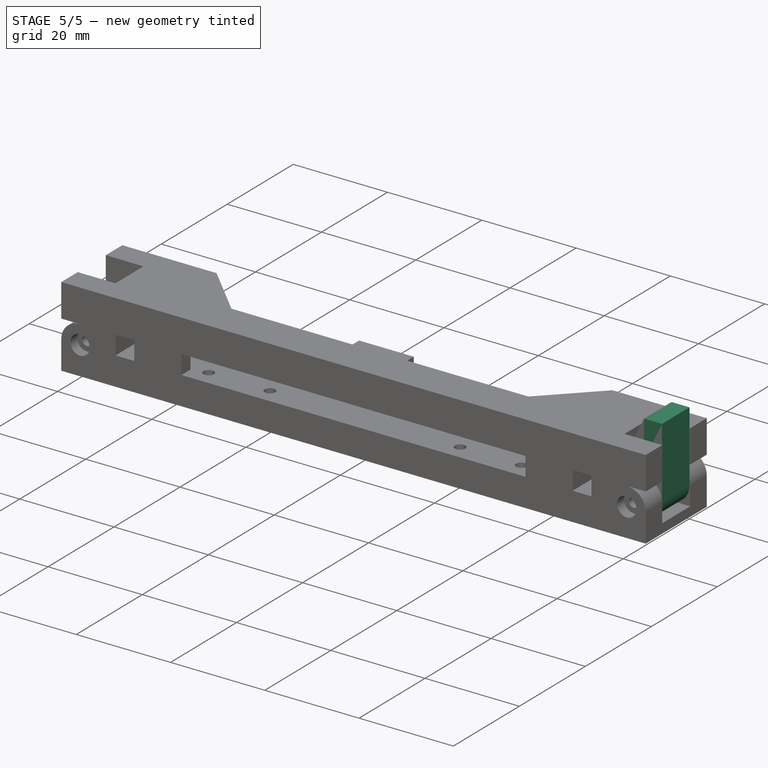
[diagram: stage 5 of 5 — iso view after this stage's code; geometry added in this stage tinted green]
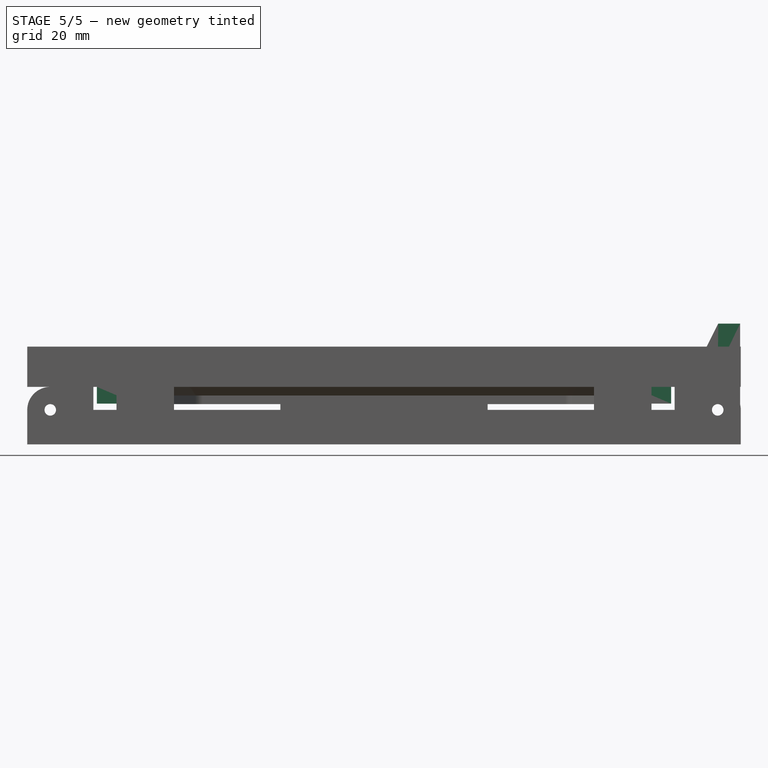
[diagram: stage 5 of 5 — front view after this stage's code; geometry added in this stage tinted green]
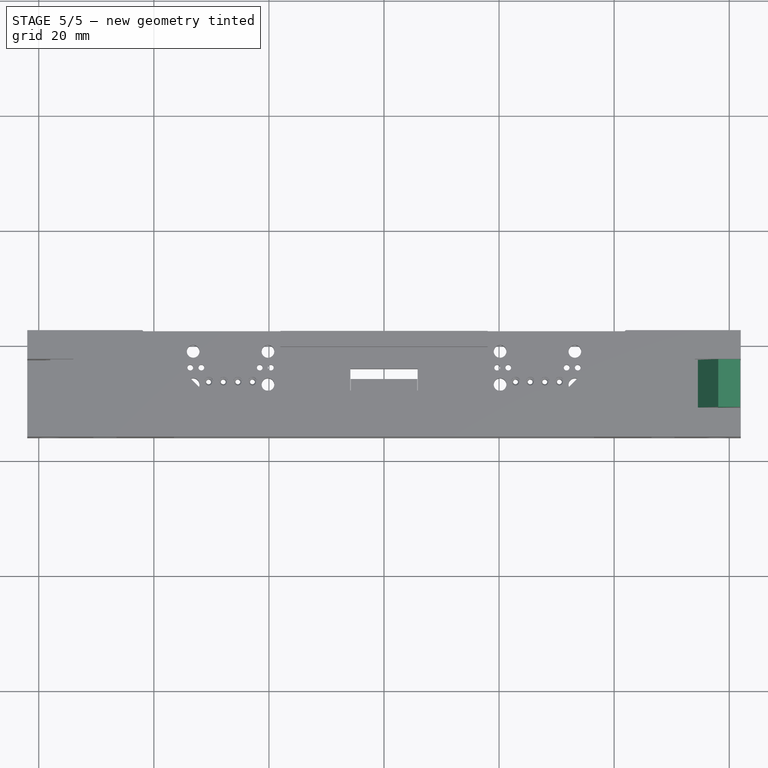
[diagram: stage 5 of 5 — top view after this stage's code; geometry added in this stage tinted green]
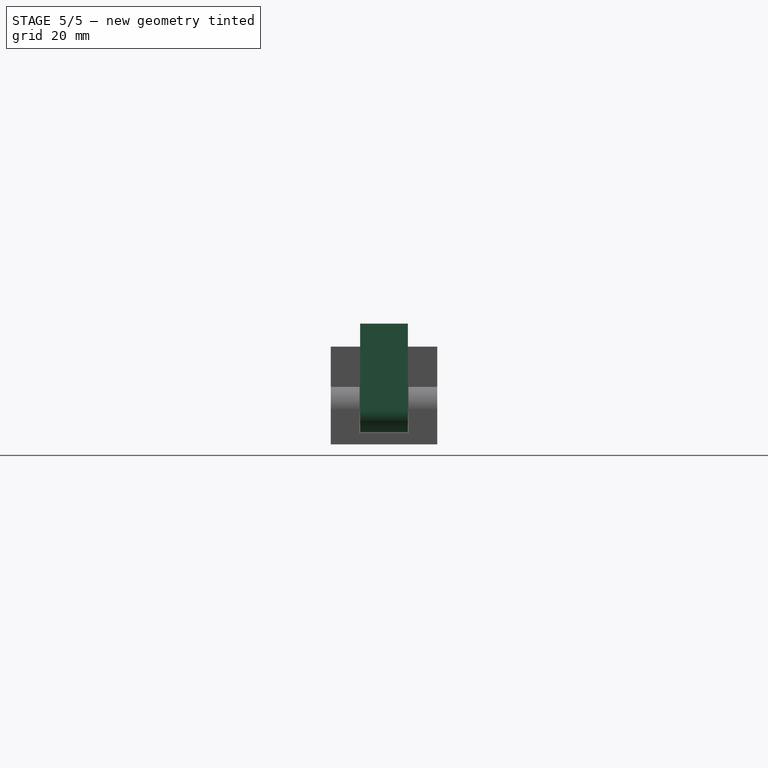
[diagram: stage 5 of 5 — right view after this stage's code; geometry added in this stage tinted green]
FEATURE [Sketcher::SketchObject] Sketch018
  AttachmentOffset = pos=(0,0,6.75) rot=(0,0,1;0rad)
  MapMode = 5
  Placement = pos=(0,-6.75,-1.5e-15) rot=(1,0,0;1.5708rad)
  Support = -> [XZ_Plane073]
  sketch-geometry (8):
    g0: Circle CenterX=58 CenterY=0 CenterZ=0 NormalX=0 NormalY=0 NormalZ=1 AngleXU=0 Radius=1
    g1: LineSegment StartX=61.9 StartY=1.6894e-12 StartZ=0 EndX=61.9 EndY=15 EndZ=0
    g2: LineSegment StartX=58 StartY=3.9 StartZ=0 EndX=58 EndY=7 EndZ=0
    g3: LineSegment StartX=58 StartY=7 StartZ=0 EndX=54.1 EndY=7 EndZ=0
    g4: LineSegment StartX=54.1 StartY=7 StartZ=0 EndX=58.1 EndY=15 EndZ=0
    g5: LineSegment StartX=58.1 StartY=15 StartZ=0 EndX=61.9 EndY=15 EndZ=0
    g6: ArcOfCircle CenterX=58 CenterY=0 CenterZ=0 NormalX=0 NormalY=0 NormalZ=1 AngleXU=0 Radius=3.9 StartAngle=1.5708 EndAngle=6.28319
    g7: LineSegment [constr] StartX=58 StartY=0 StartZ=0 EndX=58 EndY=3.9 EndZ=0
  constraints (23):
    c: PointOnObject(g0,g-1)
    c: Radius(g0) = 1
    c: PointOnObject(g1,g-1)
    c: Vertical(g1)
    c: DistanceX(g0,g1) = 3.9
    c: Vertical(g2)
    c: Coincident(g3,g2)
    c: Horizontal(g3)
    c: Coincident(g5,g4)
    c: Coincident(g5,g1)
    c: Horizontal(g5)
    c: Coincident(g6,g0)
    c: Coincident(g6,g2)
    c: Coincident(g6,g1)
    c: Coincident(g7,g0)
    c: Coincident(g7,g2)
    c: Vertical(g7)
    c: DistanceX(g3,g3) = 3.9
    c: DistanceY(g2,g2) = 3.1
    c: DistanceY(g1,g1) = 15
    c: DistanceX(g5,g5) = 3.8
    c: Coincident(g4,g3)
    c: DistanceX(g-1,g0) = 58
FEATURE [PartDesign::Pad] Pad005
  Length = 8.3
  Length2 = 100
  Midplane = true
  Placement = pos=(0,0,0) rot=(1,0,0;1.5708rad)
  Profile = -> Sketch018
  Refine = true
  Type = 0
FEATURE [PartDesign::Chamfer] Chamfer004
  Base = -> Pad005 [Edge11]
  BaseFeature = -> Pad005
  Placement = pos=(0,0,0) rot=(1,0,0;1.5708rad)
  Size = 1
FEATURE [Sketcher::SketchObject] Sketch025
  ExternalGeometry = -> [Pad006]
  MapMode = 5
  Placement = pos=(0,-8.9,0) rot=(1,0,0;1.5708rad)
  Support = -> [Pad006]
  sketch-geometry (4):
    g0: LineSegment StartX=-5.8 StartY=-5.9 StartZ=0 EndX=5.8 EndY=-5.9 EndZ=0
    g1: LineSegment StartX=5.8 StartY=-5.9 StartZ=0 EndX=5.8 EndY=-3.1 EndZ=0
    g2: LineSegment StartX=5.8 StartY=-3.1 StartZ=0 EndX=-5.8 EndY=-3.1 EndZ=0
    g3: LineSegment StartX=-5.8 StartY=-3.1 StartZ=0 EndX=-5.8 EndY=-5.9 EndZ=0
  constraints (10):
    c: Coincident(g0,g1)
    c: Coincident(g1,g2)
    c: Coincident(g2,g3)
    c: Coincident(g3,g0)
    c: Horizontal(g2)
    c: Vertical(g1)
    c: Vertical(g3)
    c: Coincident(g0,g-3)
    c: Coincident(g0,g-3)
    c: DistanceY(g1,g1) = 2.8
FEATURE [PartDesign::Pad] Pad007
  BaseFeature = -> Pad006
  Length = 1.9
  Length2 = 100
  Profile = -> Sketch025
  Refine = true
  Type = 0
FEATURE [PartDesign::Chamfer] Chamfer005
  Base = -> Pad007 [Edge115,Edge117,Edge116]
  BaseFeature = -> Pad007
  Size = 1.5
FEATURE [Sketcher::SketchObject] Sketch026
  ExternalGeometry = -> [Chamfer005]
  MapMode = 5
  Placement = pos=(0,0,4) rot=(1,0,0;3.14159rad)
  Support = -> [Chamfer005]
  sketch-geometry (10):
    g0: LineSegment StartX=-49.9 StartY=-2.5 StartZ=0 EndX=-43.1 EndY=-2.5 EndZ=0
    g1: LineSegment StartX=-43.1 StartY=-2.5 StartZ=0 EndX=-43.1 EndY=7.9 EndZ=0
    g2: LineSegment StartX=-43.1 StartY=7.9 StartZ=0 EndX=-49.9 EndY=7.9 EndZ=0
    g3: LineSegment StartX=-49.9 StartY=7.9 StartZ=0 EndX=-49.9 EndY=-2.5 EndZ=0
    g4: LineSegment StartX=43.1 StartY=-2.5 StartZ=0 EndX=49.9 EndY=-2.5 EndZ=0
    g5: LineSegment StartX=49.9 StartY=-2.5 StartZ=0 EndX=49.9 EndY=7.9 EndZ=0
    g6: LineSegment StartX=49.9 StartY=7.9 StartZ=0 EndX=43.1 EndY=7.9 EndZ=0
    g7: LineSegment StartX=43.1 StartY=7.9 StartZ=0 EndX=43.1 EndY=-2.5 EndZ=0
    g8: LineSegment [constr] StartX=62 StartY=-2.5 StartZ=0 EndX=49.9 EndY=7.9 EndZ=0
    g9: LineSegment [constr] StartX=-62 StartY=-2.5 StartZ=0 EndX=-49.9 EndY=7.9 EndZ=0
  constraints (28):
    c: Coincident(g0,g1)
    c: Coincident(g1,g2)
    c: Coincident(g2,g3)
    c: Coincident(g3,g0)
    c: Horizontal(g0)
    c: Horizontal(g2)
    c: Vertical(g1)
    c: Vertical(g3)
    c: PointOnObject(g0,g-3)
    c: Coincident(g4,g5)
    c: Coincident(g5,g6)
    c: Coincident(g6,g7)
    c: Coincident(g7,g4)
    c: Horizontal(g4)
    c: Horizontal(g6)
    c: Vertical(g5)
    c: Vertical(g7)
    c: PointOnObject(g4,g-4)
    c: DistanceX(g-3,g0) = 12.1
    c: DistanceX(g-3,g0) = 18.9
    c: Coincident(g8,g-4)
    c: Coincident(g8,g5)
    c: Coincident(g9,g-3)
    c: Coincident(g9,g2)
    c: Equal(g9,g8)
    c: Equal(g2,g6)
    c: DistanceY(g3,g3) = 10.4
    c: Equal(g1,g7)
FEATURE [PartDesign::Pad] Pad008
  BaseFeature = -> Chamfer005
  Length = 2.9
  Length2 = 100
  Profile = -> Sketch026
  Refine = true
  Type = 0
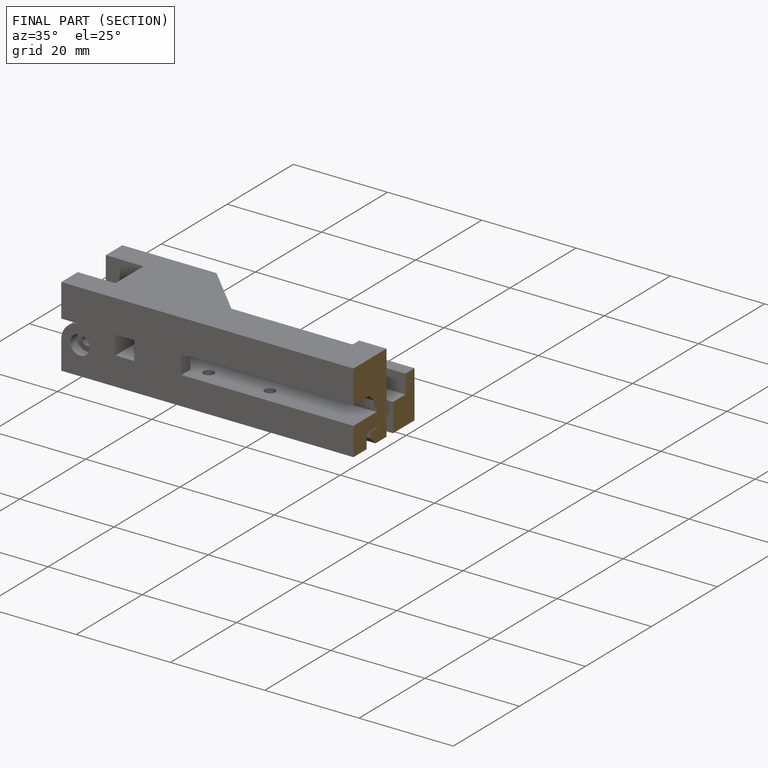
[diagram: finished part — half-section view (interior)]
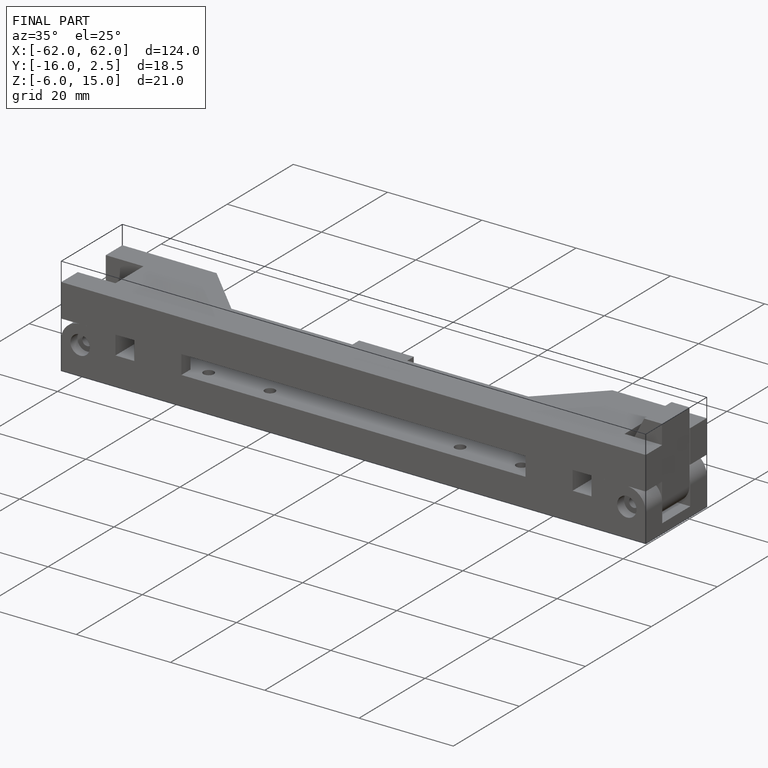
[diagram: finished part — iso view with bounding-box wireframe]
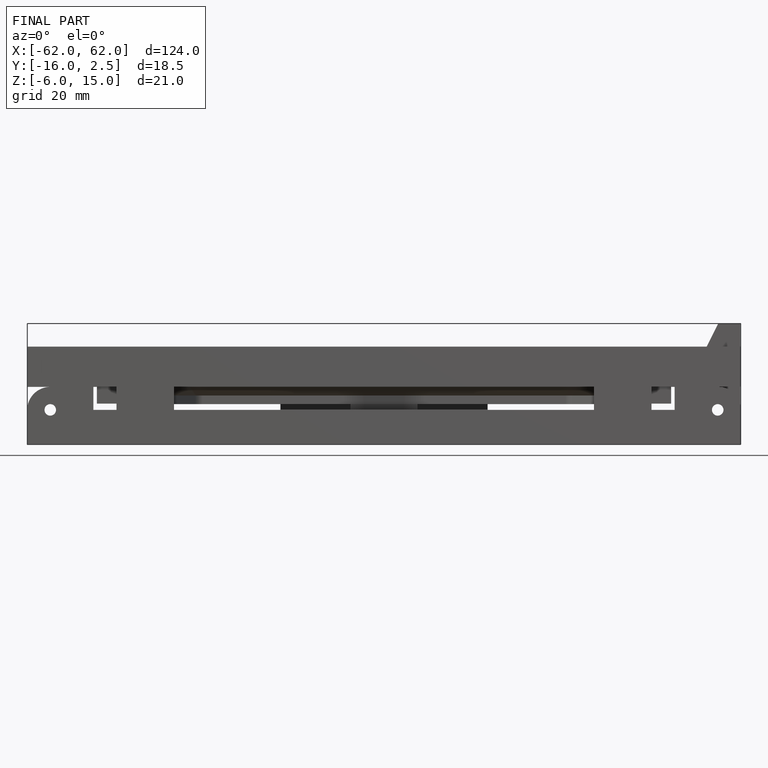
[diagram: finished part — front view with bounding-box wireframe]
